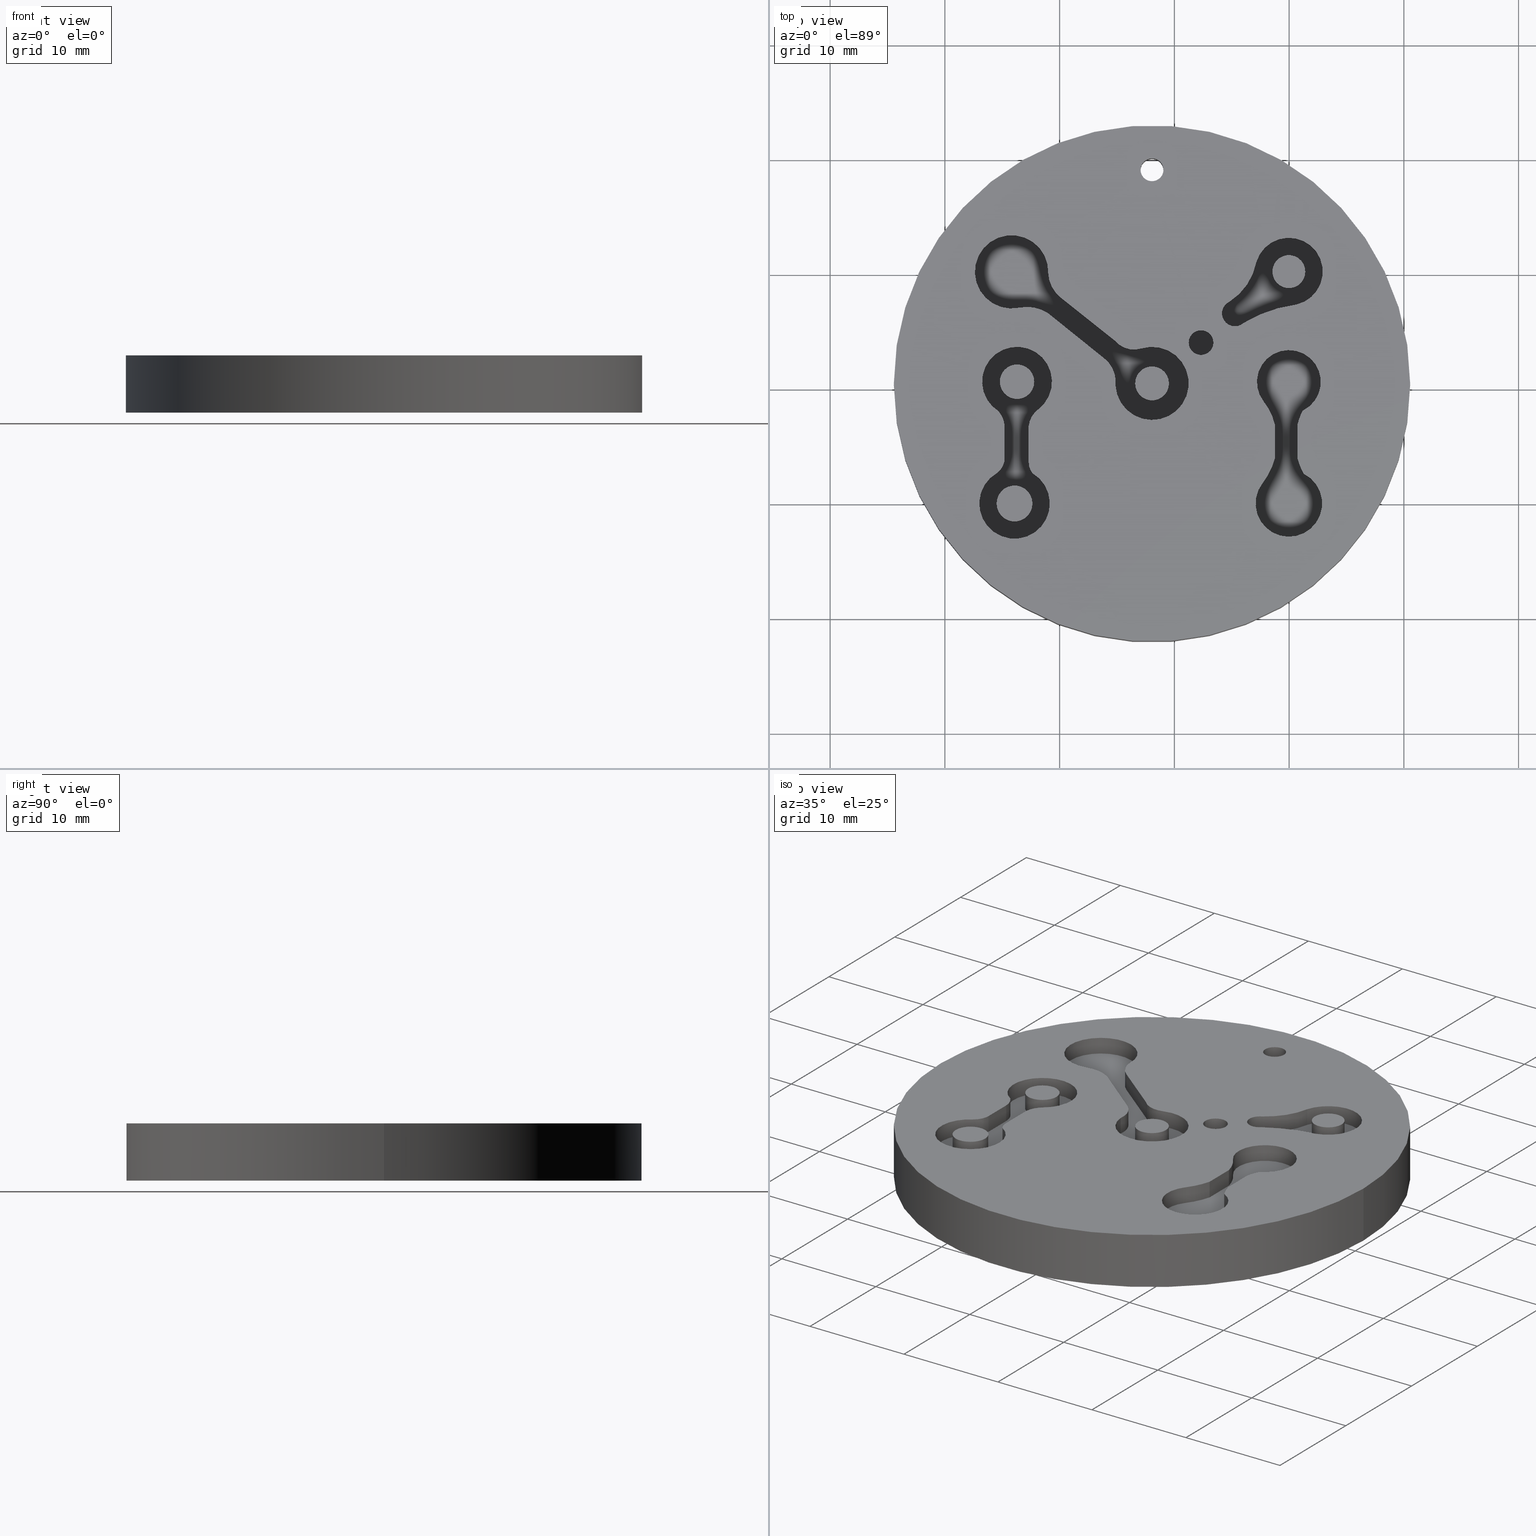
[diagram: canonical four-view strip — front | top / right | iso, engineering-drawing reading convention]
A machine part, canonical four-view strip (front | top / right | iso — engineering-drawing reading convention). The complete STEP part file that produces these views, byte-faithful:
ISO-10303-21;
HEADER;
/* Generated by software containing ST-Developer
 * from STEP Tools, Inc. (www.steptools.com) 
 */

FILE_DESCRIPTION(
/* description */ (''),
/* implementation_level */ '2;1');

FILE_NAME(
/* name */ 'Makera40mmKeychain.step',
/* time_stamp */ '2023-12-12T10:04:24-05:00',
/* author */ (''),
/* organization */ (''),
/* preprocessor_version */ 'ST-DEVELOPER v20',
/* originating_system */ 'Autodesk Translation Framework v12.14.0.127',

/* authorisation */ '');

FILE_SCHEMA (('AUTOMOTIVE_DESIGN { 1 0 10303 214 3 1 1 }'));
ENDSEC;

DATA;
#10=MECHANICAL_DESIGN_GEOMETRIC_PRESENTATION_REPRESENTATION('',(#13),#1358);
#11=SHAPE_REPRESENTATION_RELATIONSHIP('SRR','None',#1365,#12);
#12=ADVANCED_BREP_SHAPE_REPRESENTATION('',(#14),#1357);
#13=STYLED_ITEM('',(#1374),#14);
#14=MANIFOLD_SOLID_BREP('Body1',#758);
#15=FACE_BOUND('',#99,.T.);
#16=FACE_BOUND('',#110,.T.);
#17=FACE_BOUND('',#131,.T.);
#18=FACE_BOUND('',#132,.T.);
#19=FACE_BOUND('',#134,.T.);
#20=FACE_BOUND('',#135,.T.);
#21=FACE_BOUND('',#136,.T.);
#22=FACE_BOUND('',#137,.T.);
#23=FACE_BOUND('',#138,.T.);
#24=FACE_BOUND('',#139,.T.);
#25=FACE_BOUND('',#145,.T.);
#26=PLANE('',#781);
#27=PLANE('',#797);
#28=PLANE('',#804);
#29=PLANE('',#814);
#30=PLANE('',#821);
#31=PLANE('',#825);
#32=PLANE('',#835);
#33=PLANE('',#842);
#34=PLANE('',#852);
#35=PLANE('',#862);
#36=PLANE('',#869);
#37=PLANE('',#870);
#38=PLANE('',#871);
#39=PLANE('',#872);
#40=PLANE('',#873);
#41=PLANE('',#874);
#42=PLANE('',#875);
#43=FACE_OUTER_BOUND('',#89,.T.);
#44=FACE_OUTER_BOUND('',#90,.T.);
#45=FACE_OUTER_BOUND('',#91,.T.);
#46=FACE_OUTER_BOUND('',#92,.T.);
#47=FACE_OUTER_BOUND('',#93,.T.);
#48=FACE_OUTER_BOUND('',#94,.T.);
#49=FACE_OUTER_BOUND('',#95,.T.);
#50=FACE_OUTER_BOUND('',#96,.T.);
#51=FACE_OUTER_BOUND('',#97,.T.);
#52=FACE_OUTER_BOUND('',#98,.T.);
#53=FACE_OUTER_BOUND('',#100,.T.);
#54=FACE_OUTER_BOUND('',#101,.T.);
#55=FACE_OUTER_BOUND('',#102,.T.);
#56=FACE_OUTER_BOUND('',#103,.T.);
#57=FACE_OUTER_BOUND('',#104,.T.);
#58=FACE_OUTER_BOUND('',#105,.T.);
#59=FACE_OUTER_BOUND('',#106,.T.);
#60=FACE_OUTER_BOUND('',#107,.T.);
#61=FACE_OUTER_BOUND('',#108,.T.);
#62=FACE_OUTER_BOUND('',#109,.T.);
#63=FACE_OUTER_BOUND('',#111,.T.);
#64=FACE_OUTER_BOUND('',#112,.T.);
#65=FACE_OUTER_BOUND('',#113,.T.);
#66=FACE_OUTER_BOUND('',#114,.T.);
#67=FACE_OUTER_BOUND('',#115,.T.);
#68=FACE_OUTER_BOUND('',#116,.T.);
#69=FACE_OUTER_BOUND('',#117,.T.);
#70=FACE_OUTER_BOUND('',#118,.T.);
#71=FACE_OUTER_BOUND('',#119,.T.);
#72=FACE_OUTER_BOUND('',#120,.T.);
#73=FACE_OUTER_BOUND('',#121,.T.);
#74=FACE_OUTER_BOUND('',#122,.T.);
#75=FACE_OUTER_BOUND('',#123,.T.);
#76=FACE_OUTER_BOUND('',#124,.T.);
#77=FACE_OUTER_BOUND('',#125,.T.);
#78=FACE_OUTER_BOUND('',#126,.T.);
#79=FACE_OUTER_BOUND('',#127,.T.);
#80=FACE_OUTER_BOUND('',#128,.T.);
#81=FACE_OUTER_BOUND('',#129,.T.);
#82=FACE_OUTER_BOUND('',#130,.T.);
#83=FACE_OUTER_BOUND('',#133,.T.);
#84=FACE_OUTER_BOUND('',#140,.T.);
#85=FACE_OUTER_BOUND('',#141,.T.);
#86=FACE_OUTER_BOUND('',#142,.T.);
#87=FACE_OUTER_BOUND('',#143,.T.);
#88=FACE_OUTER_BOUND('',#144,.T.);
#89=EDGE_LOOP('',(#473,#474,#475,#476));
#90=EDGE_LOOP('',(#477,#478,#479,#480));
#91=EDGE_LOOP('',(#481,#482,#483,#484));
#92=EDGE_LOOP('',(#485));
#93=EDGE_LOOP('',(#486,#487,#488,#489));
#94=EDGE_LOOP('',(#490,#491,#492,#493));
#95=EDGE_LOOP('',(#494,#495,#496,#497));
#96=EDGE_LOOP('',(#498,#499,#500,#501));
#97=EDGE_LOOP('',(#502,#503,#504,#505));
#98=EDGE_LOOP('',(#506,#507,#508,#509));
#99=EDGE_LOOP('',(#510));
#100=EDGE_LOOP('',(#511,#512,#513,#514));
#101=EDGE_LOOP('',(#515,#516,#517,#518));
#102=EDGE_LOOP('',(#519,#520,#521,#522));
#103=EDGE_LOOP('',(#523,#524,#525,#526));
#104=EDGE_LOOP('',(#527,#528,#529,#530));
#105=EDGE_LOOP('',(#531,#532,#533,#534));
#106=EDGE_LOOP('',(#535,#536,#537,#538));
#107=EDGE_LOOP('',(#539,#540,#541,#542));
#108=EDGE_LOOP('',(#543,#544,#545,#546));
#109=EDGE_LOOP('',(#547,#548,#549,#550,#551,#552,#553,#554));
#110=EDGE_LOOP('',(#555));
#111=EDGE_LOOP('',(#556,#557,#558,#559));
#112=EDGE_LOOP('',(#560,#561,#562,#563));
#113=EDGE_LOOP('',(#564,#565,#566,#567));
#114=EDGE_LOOP('',(#568,#569,#570,#571));
#115=EDGE_LOOP('',(#572,#573,#574,#575));
#116=EDGE_LOOP('',(#576,#577,#578,#579));
#117=EDGE_LOOP('',(#580,#581,#582,#583));
#118=EDGE_LOOP('',(#584,#585,#586,#587));
#119=EDGE_LOOP('',(#588,#589,#590,#591,#592,#593,#594,#595));
#120=EDGE_LOOP('',(#596,#597,#598,#599));
#121=EDGE_LOOP('',(#600,#601,#602,#603));
#122=EDGE_LOOP('',(#604,#605,#606,#607));
#123=EDGE_LOOP('',(#608,#609,#610,#611));
#124=EDGE_LOOP('',(#612,#613,#614,#615));
#125=EDGE_LOOP('',(#616,#617,#618,#619));
#126=EDGE_LOOP('',(#620,#621,#622,#623));
#127=EDGE_LOOP('',(#624,#625,#626,#627));
#128=EDGE_LOOP('',(#628,#629,#630,#631));
#129=EDGE_LOOP('',(#632,#633,#634,#635));
#130=EDGE_LOOP('',(#636,#637,#638,#639,#640,#641,#642,#643));
#131=EDGE_LOOP('',(#644));
#132=EDGE_LOOP('',(#645));
#133=EDGE_LOOP('',(#646));
#134=EDGE_LOOP('',(#647));
#135=EDGE_LOOP('',(#648));
#136=EDGE_LOOP('',(#649,#650,#651,#652));
#137=EDGE_LOOP('',(#653,#654,#655,#656,#657,#658,#659,#660));
#138=EDGE_LOOP('',(#661,#662,#663,#664,#665,#666,#667,#668));
#139=EDGE_LOOP('',(#669,#670,#671,#672,#673,#674,#675,#676));
#140=EDGE_LOOP('',(#677));
#141=EDGE_LOOP('',(#678));
#142=EDGE_LOOP('',(#679));
#143=EDGE_LOOP('',(#680));
#144=EDGE_LOOP('',(#681));
#145=EDGE_LOOP('',(#682));
#146=LINE('',#1138,#193);
#147=LINE('',#1144,#194);
#148=LINE('',#1150,#195);
#149=LINE('',#1157,#196);
#150=LINE('',#1164,#197);
#151=LINE('',#1167,#198);
#152=LINE('',#1172,#199);
#153=LINE('',#1178,#200);
#154=LINE('',#1188,#201);
#155=LINE('',#1195,#202);
#156=LINE('',#1198,#203);
#157=LINE('',#1201,#204);
#158=LINE('',#1203,#205);
#159=LINE('',#1204,#206);
#160=LINE('',#1209,#207);
#161=LINE('',#1215,#208);
#162=LINE('',#1221,#209);
#163=LINE('',#1225,#210);
#164=LINE('',#1227,#211);
#165=LINE('',#1228,#212);
#166=LINE('',#1233,#213);
#167=LINE('',#1244,#214);
#168=LINE('',#1247,#215);
#169=LINE('',#1250,#216);
#170=LINE('',#1252,#217);
#171=LINE('',#1253,#218);
#172=LINE('',#1258,#219);
#173=LINE('',#1264,#220);
#174=LINE('',#1270,#221);
#175=LINE('',#1274,#222);
#176=LINE('',#1276,#223);
#177=LINE('',#1277,#224);
#178=LINE('',#1282,#225);
#179=LINE('',#1292,#226);
#180=LINE('',#1298,#227);
#181=LINE('',#1305,#228);
#182=LINE('',#1308,#229);
#183=LINE('',#1311,#230);
#184=LINE('',#1313,#231);
#185=LINE('',#1314,#232);
#186=LINE('',#1319,#233);
#187=LINE('',#1325,#234);
#188=LINE('',#1331,#235);
#189=LINE('',#1335,#236);
#190=LINE('',#1337,#237);
#191=LINE('',#1338,#238);
#192=LINE('',#1343,#239);
#193=VECTOR('',#882,1.);
#194=VECTOR('',#889,22.5);
#195=VECTOR('',#896,1.07672015491203);
#196=VECTOR('',#905,1.43526383437021);
#197=VECTOR('',#912,10.);
#198=VECTOR('',#915,10.);
#199=VECTOR('',#920,10.);
#200=VECTOR('',#927,10.);
#201=VECTOR('',#942,1.47556711621174);
#202=VECTOR('',#949,10.);
#203=VECTOR('',#952,10.);
#204=VECTOR('',#955,48.);
#205=VECTOR('',#956,10.);
#206=VECTOR('',#957,48.);
#207=VECTOR('',#962,10.);
#208=VECTOR('',#969,10.);
#209=VECTOR('',#976,10.);
#210=VECTOR('',#981,48.);
#211=VECTOR('',#982,10.);
#212=VECTOR('',#983,48.);
#213=VECTOR('',#988,10.);
#214=VECTOR('',#1003,10.);
#215=VECTOR('',#1006,10.);
#216=VECTOR('',#1009,48.);
#217=VECTOR('',#1010,10.);
#218=VECTOR('',#1011,48.);
#219=VECTOR('',#1016,10.);
#220=VECTOR('',#1023,10.);
#221=VECTOR('',#1030,10.);
#222=VECTOR('',#1035,48.);
#223=VECTOR('',#1036,10.);
#224=VECTOR('',#1037,48.);
#225=VECTOR('',#1042,10.);
#226=VECTOR('',#1057,1.50057594854906);
#227=VECTOR('',#1064,1.56346471094669);
#228=VECTOR('',#1071,10.);
#229=VECTOR('',#1074,10.);
#230=VECTOR('',#1077,48.);
#231=VECTOR('',#1078,10.);
#232=VECTOR('',#1079,48.);
#233=VECTOR('',#1084,10.);
#234=VECTOR('',#1091,10.);
#235=VECTOR('',#1098,10.);
#236=VECTOR('',#1103,48.);
#237=VECTOR('',#1104,10.);
#238=VECTOR('',#1105,48.);
#239=VECTOR('',#1110,10.);
#240=CIRCLE('',#773,1.);
#241=CIRCLE('',#774,1.);
#242=CIRCLE('',#776,22.5);
#243=CIRCLE('',#777,22.5);
#244=CIRCLE('',#779,1.07672015491203);
#245=CIRCLE('',#780,1.07672015491203);
#246=CIRCLE('',#783,1.43526383437021);
#247=CIRCLE('',#784,1.43526383437021);
#248=CIRCLE('',#786,11.7069667488273);
#249=CIRCLE('',#787,11.7069667488273);
#250=CIRCLE('',#789,2.94888572910964);
#251=CIRCLE('',#790,2.94888572910964);
#252=CIRCLE('',#792,5.27787053740473);
#253=CIRCLE('',#793,5.27787053740473);
#254=CIRCLE('',#795,1.12692869761494);
#255=CIRCLE('',#796,1.12692869761494);
#256=CIRCLE('',#799,1.47556711621174);
#257=CIRCLE('',#800,1.47556711621174);
#258=CIRCLE('',#802,3.31496552583742);
#259=CIRCLE('',#803,3.31496552583742);
#260=CIRCLE('',#806,2.6146646522035);
#261=CIRCLE('',#807,2.6146646522035);
#262=CIRCLE('',#809,3.18865941362887);
#263=CIRCLE('',#810,3.18865941362887);
#264=CIRCLE('',#812,2.18194427932069);
#265=CIRCLE('',#813,2.18194427932069);
#266=CIRCLE('',#816,2.87217014798354);
#267=CIRCLE('',#817,2.87217014798354);
#268=CIRCLE('',#819,3.19426913772284);
#269=CIRCLE('',#820,3.19426913772284);
#270=CIRCLE('',#823,5.03169616243129);
#271=CIRCLE('',#824,5.03169616243129);
#272=CIRCLE('',#827,5.85208532061931);
#273=CIRCLE('',#828,5.85208532061931);
#274=CIRCLE('',#830,2.8965525042398);
#275=CIRCLE('',#831,2.8965525042398);
#276=CIRCLE('',#833,5.85208532061931);
#277=CIRCLE('',#834,5.85208532061931);
#278=CIRCLE('',#837,5.03169616243127);
#279=CIRCLE('',#838,5.03169616243127);
#280=CIRCLE('',#840,2.77997540433799);
#281=CIRCLE('',#841,2.77997540433799);
#282=CIRCLE('',#844,1.50057594854906);
#283=CIRCLE('',#845,1.50057594854906);
#284=CIRCLE('',#847,1.56346471094669);
#285=CIRCLE('',#848,1.56346471094669);
#286=CIRCLE('',#850,2.13081616101524);
#287=CIRCLE('',#851,2.13081616101524);
#288=CIRCLE('',#854,1.62980474225353);
#289=CIRCLE('',#855,1.62980474225353);
#290=CIRCLE('',#857,3.06980999880907);
#291=CIRCLE('',#858,3.06980999880907);
#292=CIRCLE('',#860,1.46515175611475);
#293=CIRCLE('',#861,1.46515175611475);
#294=CIRCLE('',#864,2.06240244404573);
#295=CIRCLE('',#865,2.06240244404573);
#296=CIRCLE('',#867,3.04095983531042);
#297=CIRCLE('',#868,3.04095983531042);
#298=VERTEX_POINT('',#1135);
#299=VERTEX_POINT('',#1137);
#300=VERTEX_POINT('',#1141);
#301=VERTEX_POINT('',#1143);
#302=VERTEX_POINT('',#1147);
#303=VERTEX_POINT('',#1149);
#304=VERTEX_POINT('',#1154);
#305=VERTEX_POINT('',#1156);
#306=VERTEX_POINT('',#1160);
#307=VERTEX_POINT('',#1161);
#308=VERTEX_POINT('',#1163);
#309=VERTEX_POINT('',#1165);
#310=VERTEX_POINT('',#1169);
#311=VERTEX_POINT('',#1171);
#312=VERTEX_POINT('',#1175);
#313=VERTEX_POINT('',#1177);
#314=VERTEX_POINT('',#1185);
#315=VERTEX_POINT('',#1187);
#316=VERTEX_POINT('',#1191);
#317=VERTEX_POINT('',#1192);
#318=VERTEX_POINT('',#1194);
#319=VERTEX_POINT('',#1196);
#320=VERTEX_POINT('',#1200);
#321=VERTEX_POINT('',#1202);
#322=VERTEX_POINT('',#1206);
#323=VERTEX_POINT('',#1208);
#324=VERTEX_POINT('',#1212);
#325=VERTEX_POINT('',#1214);
#326=VERTEX_POINT('',#1218);
#327=VERTEX_POINT('',#1220);
#328=VERTEX_POINT('',#1224);
#329=VERTEX_POINT('',#1226);
#330=VERTEX_POINT('',#1230);
#331=VERTEX_POINT('',#1232);
#332=VERTEX_POINT('',#1240);
#333=VERTEX_POINT('',#1241);
#334=VERTEX_POINT('',#1243);
#335=VERTEX_POINT('',#1245);
#336=VERTEX_POINT('',#1249);
#337=VERTEX_POINT('',#1251);
#338=VERTEX_POINT('',#1255);
#339=VERTEX_POINT('',#1257);
#340=VERTEX_POINT('',#1261);
#341=VERTEX_POINT('',#1263);
#342=VERTEX_POINT('',#1267);
#343=VERTEX_POINT('',#1269);
#344=VERTEX_POINT('',#1273);
#345=VERTEX_POINT('',#1275);
#346=VERTEX_POINT('',#1279);
#347=VERTEX_POINT('',#1281);
#348=VERTEX_POINT('',#1289);
#349=VERTEX_POINT('',#1291);
#350=VERTEX_POINT('',#1295);
#351=VERTEX_POINT('',#1297);
#352=VERTEX_POINT('',#1301);
#353=VERTEX_POINT('',#1302);
#354=VERTEX_POINT('',#1304);
#355=VERTEX_POINT('',#1306);
#356=VERTEX_POINT('',#1310);
#357=VERTEX_POINT('',#1312);
#358=VERTEX_POINT('',#1316);
#359=VERTEX_POINT('',#1318);
#360=VERTEX_POINT('',#1322);
#361=VERTEX_POINT('',#1324);
#362=VERTEX_POINT('',#1328);
#363=VERTEX_POINT('',#1330);
#364=VERTEX_POINT('',#1334);
#365=VERTEX_POINT('',#1336);
#366=VERTEX_POINT('',#1340);
#367=VERTEX_POINT('',#1342);
#368=EDGE_CURVE('',#298,#298,#240,.T.);
#369=EDGE_CURVE('',#298,#299,#146,.T.);
#370=EDGE_CURVE('',#299,#299,#241,.T.);
#371=EDGE_CURVE('',#300,#300,#242,.T.);
#372=EDGE_CURVE('',#300,#301,#147,.T.);
#373=EDGE_CURVE('',#301,#301,#243,.T.);
#374=EDGE_CURVE('',#302,#302,#244,.T.);
#375=EDGE_CURVE('',#302,#303,#148,.T.);
#376=EDGE_CURVE('',#303,#303,#245,.T.);
#377=EDGE_CURVE('',#304,#304,#246,.T.);
#378=EDGE_CURVE('',#304,#305,#149,.T.);
#379=EDGE_CURVE('',#305,#305,#247,.T.);
#380=EDGE_CURVE('',#306,#307,#248,.T.);
#381=EDGE_CURVE('',#306,#308,#150,.T.);
#382=EDGE_CURVE('',#308,#309,#249,.T.);
#383=EDGE_CURVE('',#307,#309,#151,.T.);
#384=EDGE_CURVE('',#310,#306,#250,.T.);
#385=EDGE_CURVE('',#310,#311,#152,.T.);
#386=EDGE_CURVE('',#311,#308,#251,.T.);
#387=EDGE_CURVE('',#312,#310,#252,.T.);
#388=EDGE_CURVE('',#312,#313,#153,.T.);
#389=EDGE_CURVE('',#313,#311,#253,.T.);
#390=EDGE_CURVE('',#307,#312,#254,.T.);
#391=EDGE_CURVE('',#309,#313,#255,.T.);
#392=EDGE_CURVE('',#314,#314,#256,.T.);
#393=EDGE_CURVE('',#314,#315,#154,.T.);
#394=EDGE_CURVE('',#315,#315,#257,.T.);
#395=EDGE_CURVE('',#316,#317,#258,.T.);
#396=EDGE_CURVE('',#316,#318,#155,.T.);
#397=EDGE_CURVE('',#318,#319,#259,.T.);
#398=EDGE_CURVE('',#317,#319,#156,.T.);
#399=EDGE_CURVE('',#320,#316,#157,.T.);
#400=EDGE_CURVE('',#320,#321,#158,.T.);
#401=EDGE_CURVE('',#321,#318,#159,.T.);
#402=EDGE_CURVE('',#322,#320,#260,.T.);
#403=EDGE_CURVE('',#322,#323,#160,.T.);
#404=EDGE_CURVE('',#323,#321,#261,.T.);
#405=EDGE_CURVE('',#324,#322,#262,.T.);
#406=EDGE_CURVE('',#324,#325,#161,.T.);
#407=EDGE_CURVE('',#325,#323,#263,.T.);
#408=EDGE_CURVE('',#326,#324,#264,.T.);
#409=EDGE_CURVE('',#326,#327,#162,.T.);
#410=EDGE_CURVE('',#327,#325,#265,.T.);
#411=EDGE_CURVE('',#328,#326,#163,.T.);
#412=EDGE_CURVE('',#328,#329,#164,.T.);
#413=EDGE_CURVE('',#329,#327,#165,.T.);
#414=EDGE_CURVE('',#330,#328,#266,.T.);
#415=EDGE_CURVE('',#330,#331,#166,.T.);
#416=EDGE_CURVE('',#331,#329,#267,.T.);
#417=EDGE_CURVE('',#317,#330,#268,.T.);
#418=EDGE_CURVE('',#319,#331,#269,.T.);
#419=EDGE_CURVE('',#332,#333,#270,.T.);
#420=EDGE_CURVE('',#332,#334,#167,.T.);
#421=EDGE_CURVE('',#334,#335,#271,.T.);
#422=EDGE_CURVE('',#333,#335,#168,.T.);
#423=EDGE_CURVE('',#336,#332,#169,.T.);
#424=EDGE_CURVE('',#336,#337,#170,.T.);
#425=EDGE_CURVE('',#337,#334,#171,.T.);
#426=EDGE_CURVE('',#338,#336,#272,.T.);
#427=EDGE_CURVE('',#338,#339,#172,.T.);
#428=EDGE_CURVE('',#339,#337,#273,.T.);
#429=EDGE_CURVE('',#340,#338,#274,.T.);
#430=EDGE_CURVE('',#340,#341,#173,.T.);
#431=EDGE_CURVE('',#341,#339,#275,.T.);
#432=EDGE_CURVE('',#342,#340,#276,.T.);
#433=EDGE_CURVE('',#342,#343,#174,.T.);
#434=EDGE_CURVE('',#343,#341,#277,.T.);
#435=EDGE_CURVE('',#344,#342,#175,.T.);
#436=EDGE_CURVE('',#344,#345,#176,.T.);
#437=EDGE_CURVE('',#345,#343,#177,.T.);
#438=EDGE_CURVE('',#346,#344,#278,.T.);
#439=EDGE_CURVE('',#346,#347,#178,.T.);
#440=EDGE_CURVE('',#347,#345,#279,.T.);
#441=EDGE_CURVE('',#333,#346,#280,.T.);
#442=EDGE_CURVE('',#335,#347,#281,.T.);
#443=EDGE_CURVE('',#348,#348,#282,.T.);
#444=EDGE_CURVE('',#348,#349,#179,.T.);
#445=EDGE_CURVE('',#349,#349,#283,.T.);
#446=EDGE_CURVE('',#350,#350,#284,.T.);
#447=EDGE_CURVE('',#350,#351,#180,.T.);
#448=EDGE_CURVE('',#351,#351,#285,.T.);
#449=EDGE_CURVE('',#352,#353,#286,.T.);
#450=EDGE_CURVE('',#352,#354,#181,.T.);
#451=EDGE_CURVE('',#354,#355,#287,.T.);
#452=EDGE_CURVE('',#353,#355,#182,.T.);
#453=EDGE_CURVE('',#356,#352,#183,.T.);
#454=EDGE_CURVE('',#356,#357,#184,.T.);
#455=EDGE_CURVE('',#357,#354,#185,.T.);
#456=EDGE_CURVE('',#358,#356,#288,.T.);
#457=EDGE_CURVE('',#358,#359,#186,.T.);
#458=EDGE_CURVE('',#359,#357,#289,.T.);
#459=EDGE_CURVE('',#360,#358,#290,.T.);
#460=EDGE_CURVE('',#360,#361,#187,.T.);
#461=EDGE_CURVE('',#361,#359,#291,.T.);
#462=EDGE_CURVE('',#362,#360,#292,.T.);
#463=EDGE_CURVE('',#362,#363,#188,.T.);
#464=EDGE_CURVE('',#363,#361,#293,.T.);
#465=EDGE_CURVE('',#364,#362,#189,.T.);
#466=EDGE_CURVE('',#364,#365,#190,.T.);
#467=EDGE_CURVE('',#365,#363,#191,.T.);
#468=EDGE_CURVE('',#366,#364,#294,.T.);
#469=EDGE_CURVE('',#366,#367,#192,.T.);
#470=EDGE_CURVE('',#367,#365,#295,.T.);
#471=EDGE_CURVE('',#353,#366,#296,.T.);
#472=EDGE_CURVE('',#355,#367,#297,.T.);
#473=ORIENTED_EDGE('',*,*,#368,.F.);
#474=ORIENTED_EDGE('',*,*,#369,.T.);
#475=ORIENTED_EDGE('',*,*,#370,.F.);
#476=ORIENTED_EDGE('',*,*,#369,.F.);
#477=ORIENTED_EDGE('',*,*,#371,.F.);
#478=ORIENTED_EDGE('',*,*,#372,.T.);
#479=ORIENTED_EDGE('',*,*,#373,.F.);
#480=ORIENTED_EDGE('',*,*,#372,.F.);
#481=ORIENTED_EDGE('',*,*,#374,.T.);
#482=ORIENTED_EDGE('',*,*,#375,.T.);
#483=ORIENTED_EDGE('',*,*,#376,.F.);
#484=ORIENTED_EDGE('',*,*,#375,.F.);
#485=ORIENTED_EDGE('',*,*,#374,.F.);
#486=ORIENTED_EDGE('',*,*,#377,.T.);
#487=ORIENTED_EDGE('',*,*,#378,.T.);
#488=ORIENTED_EDGE('',*,*,#379,.F.);
#489=ORIENTED_EDGE('',*,*,#378,.F.);
#490=ORIENTED_EDGE('',*,*,#380,.F.);
#491=ORIENTED_EDGE('',*,*,#381,.T.);
#492=ORIENTED_EDGE('',*,*,#382,.T.);
#493=ORIENTED_EDGE('',*,*,#383,.F.);
#494=ORIENTED_EDGE('',*,*,#384,.F.);
#495=ORIENTED_EDGE('',*,*,#385,.T.);
#496=ORIENTED_EDGE('',*,*,#386,.T.);
#497=ORIENTED_EDGE('',*,*,#381,.F.);
#498=ORIENTED_EDGE('',*,*,#387,.F.);
#499=ORIENTED_EDGE('',*,*,#388,.T.);
#500=ORIENTED_EDGE('',*,*,#389,.T.);
#501=ORIENTED_EDGE('',*,*,#385,.F.);
#502=ORIENTED_EDGE('',*,*,#390,.F.);
#503=ORIENTED_EDGE('',*,*,#383,.T.);
#504=ORIENTED_EDGE('',*,*,#391,.T.);
#505=ORIENTED_EDGE('',*,*,#388,.F.);
#506=ORIENTED_EDGE('',*,*,#391,.F.);
#507=ORIENTED_EDGE('',*,*,#382,.F.);
#508=ORIENTED_EDGE('',*,*,#386,.F.);
#509=ORIENTED_EDGE('',*,*,#389,.F.);
#510=ORIENTED_EDGE('',*,*,#377,.F.);
#511=ORIENTED_EDGE('',*,*,#392,.T.);
#512=ORIENTED_EDGE('',*,*,#393,.T.);
#513=ORIENTED_EDGE('',*,*,#394,.F.);
#514=ORIENTED_EDGE('',*,*,#393,.F.);
#515=ORIENTED_EDGE('',*,*,#395,.F.);
#516=ORIENTED_EDGE('',*,*,#396,.T.);
#517=ORIENTED_EDGE('',*,*,#397,.T.);
#518=ORIENTED_EDGE('',*,*,#398,.F.);
#519=ORIENTED_EDGE('',*,*,#399,.F.);
#520=ORIENTED_EDGE('',*,*,#400,.T.);
#521=ORIENTED_EDGE('',*,*,#401,.T.);
#522=ORIENTED_EDGE('',*,*,#396,.F.);
#523=ORIENTED_EDGE('',*,*,#402,.F.);
#524=ORIENTED_EDGE('',*,*,#403,.T.);
#525=ORIENTED_EDGE('',*,*,#404,.T.);
#526=ORIENTED_EDGE('',*,*,#400,.F.);
#527=ORIENTED_EDGE('',*,*,#405,.F.);
#528=ORIENTED_EDGE('',*,*,#406,.T.);
#529=ORIENTED_EDGE('',*,*,#407,.T.);
#530=ORIENTED_EDGE('',*,*,#403,.F.);
#531=ORIENTED_EDGE('',*,*,#408,.F.);
#532=ORIENTED_EDGE('',*,*,#409,.T.);
#533=ORIENTED_EDGE('',*,*,#410,.T.);
#534=ORIENTED_EDGE('',*,*,#406,.F.);
#535=ORIENTED_EDGE('',*,*,#411,.F.);
#536=ORIENTED_EDGE('',*,*,#412,.T.);
#537=ORIENTED_EDGE('',*,*,#413,.T.);
#538=ORIENTED_EDGE('',*,*,#409,.F.);
#539=ORIENTED_EDGE('',*,*,#414,.F.);
#540=ORIENTED_EDGE('',*,*,#415,.T.);
#541=ORIENTED_EDGE('',*,*,#416,.T.);
#542=ORIENTED_EDGE('',*,*,#412,.F.);
#543=ORIENTED_EDGE('',*,*,#417,.F.);
#544=ORIENTED_EDGE('',*,*,#398,.T.);
#545=ORIENTED_EDGE('',*,*,#418,.T.);
#546=ORIENTED_EDGE('',*,*,#415,.F.);
#547=ORIENTED_EDGE('',*,*,#418,.F.);
#548=ORIENTED_EDGE('',*,*,#397,.F.);
#549=ORIENTED_EDGE('',*,*,#401,.F.);
#550=ORIENTED_EDGE('',*,*,#404,.F.);
#551=ORIENTED_EDGE('',*,*,#407,.F.);
#552=ORIENTED_EDGE('',*,*,#410,.F.);
#553=ORIENTED_EDGE('',*,*,#413,.F.);
#554=ORIENTED_EDGE('',*,*,#416,.F.);
#555=ORIENTED_EDGE('',*,*,#392,.F.);
#556=ORIENTED_EDGE('',*,*,#419,.F.);
#557=ORIENTED_EDGE('',*,*,#420,.T.);
#558=ORIENTED_EDGE('',*,*,#421,.T.);
#559=ORIENTED_EDGE('',*,*,#422,.F.);
#560=ORIENTED_EDGE('',*,*,#423,.F.);
#561=ORIENTED_EDGE('',*,*,#424,.T.);
#562=ORIENTED_EDGE('',*,*,#425,.T.);
#563=ORIENTED_EDGE('',*,*,#420,.F.);
#564=ORIENTED_EDGE('',*,*,#426,.F.);
#565=ORIENTED_EDGE('',*,*,#427,.T.);
#566=ORIENTED_EDGE('',*,*,#428,.T.);
#567=ORIENTED_EDGE('',*,*,#424,.F.);
#568=ORIENTED_EDGE('',*,*,#429,.F.);
#569=ORIENTED_EDGE('',*,*,#430,.T.);
#570=ORIENTED_EDGE('',*,*,#431,.T.);
#571=ORIENTED_EDGE('',*,*,#427,.F.);
#572=ORIENTED_EDGE('',*,*,#432,.F.);
#573=ORIENTED_EDGE('',*,*,#433,.T.);
#574=ORIENTED_EDGE('',*,*,#434,.T.);
#575=ORIENTED_EDGE('',*,*,#430,.F.);
#576=ORIENTED_EDGE('',*,*,#435,.F.);
#577=ORIENTED_EDGE('',*,*,#436,.T.);
#578=ORIENTED_EDGE('',*,*,#437,.T.);
#579=ORIENTED_EDGE('',*,*,#433,.F.);
#580=ORIENTED_EDGE('',*,*,#438,.F.);
#581=ORIENTED_EDGE('',*,*,#439,.T.);
#582=ORIENTED_EDGE('',*,*,#440,.T.);
#583=ORIENTED_EDGE('',*,*,#436,.F.);
#584=ORIENTED_EDGE('',*,*,#441,.F.);
#585=ORIENTED_EDGE('',*,*,#422,.T.);
#586=ORIENTED_EDGE('',*,*,#442,.T.);
#587=ORIENTED_EDGE('',*,*,#439,.F.);
#588=ORIENTED_EDGE('',*,*,#442,.F.);
#589=ORIENTED_EDGE('',*,*,#421,.F.);
#590=ORIENTED_EDGE('',*,*,#425,.F.);
#591=ORIENTED_EDGE('',*,*,#428,.F.);
#592=ORIENTED_EDGE('',*,*,#431,.F.);
#593=ORIENTED_EDGE('',*,*,#434,.F.);
#594=ORIENTED_EDGE('',*,*,#437,.F.);
#595=ORIENTED_EDGE('',*,*,#440,.F.);
#596=ORIENTED_EDGE('',*,*,#443,.T.);
#597=ORIENTED_EDGE('',*,*,#444,.T.);
#598=ORIENTED_EDGE('',*,*,#445,.F.);
#599=ORIENTED_EDGE('',*,*,#444,.F.);
#600=ORIENTED_EDGE('',*,*,#446,.T.);
#601=ORIENTED_EDGE('',*,*,#447,.T.);
#602=ORIENTED_EDGE('',*,*,#448,.F.);
#603=ORIENTED_EDGE('',*,*,#447,.F.);
#604=ORIENTED_EDGE('',*,*,#449,.F.);
#605=ORIENTED_EDGE('',*,*,#450,.T.);
#606=ORIENTED_EDGE('',*,*,#451,.T.);
#607=ORIENTED_EDGE('',*,*,#452,.F.);
#608=ORIENTED_EDGE('',*,*,#453,.F.);
#609=ORIENTED_EDGE('',*,*,#454,.T.);
#610=ORIENTED_EDGE('',*,*,#455,.T.);
#611=ORIENTED_EDGE('',*,*,#450,.F.);
#612=ORIENTED_EDGE('',*,*,#456,.F.);
#613=ORIENTED_EDGE('',*,*,#457,.T.);
#614=ORIENTED_EDGE('',*,*,#458,.T.);
#615=ORIENTED_EDGE('',*,*,#454,.F.);
#616=ORIENTED_EDGE('',*,*,#459,.F.);
#617=ORIENTED_EDGE('',*,*,#460,.T.);
#618=ORIENTED_EDGE('',*,*,#461,.T.);
#619=ORIENTED_EDGE('',*,*,#457,.F.);
#620=ORIENTED_EDGE('',*,*,#462,.F.);
#621=ORIENTED_EDGE('',*,*,#463,.T.);
#622=ORIENTED_EDGE('',*,*,#464,.T.);
#623=ORIENTED_EDGE('',*,*,#460,.F.);
#624=ORIENTED_EDGE('',*,*,#465,.F.);
#625=ORIENTED_EDGE('',*,*,#466,.T.);
#626=ORIENTED_EDGE('',*,*,#467,.T.);
#627=ORIENTED_EDGE('',*,*,#463,.F.);
#628=ORIENTED_EDGE('',*,*,#468,.F.);
#629=ORIENTED_EDGE('',*,*,#469,.T.);
#630=ORIENTED_EDGE('',*,*,#470,.T.);
#631=ORIENTED_EDGE('',*,*,#466,.F.);
#632=ORIENTED_EDGE('',*,*,#471,.F.);
#633=ORIENTED_EDGE('',*,*,#452,.T.);
#634=ORIENTED_EDGE('',*,*,#472,.T.);
#635=ORIENTED_EDGE('',*,*,#469,.F.);
#636=ORIENTED_EDGE('',*,*,#472,.F.);
#637=ORIENTED_EDGE('',*,*,#451,.F.);
#638=ORIENTED_EDGE('',*,*,#455,.F.);
#639=ORIENTED_EDGE('',*,*,#458,.F.);
#640=ORIENTED_EDGE('',*,*,#461,.F.);
#641=ORIENTED_EDGE('',*,*,#464,.F.);
#642=ORIENTED_EDGE('',*,*,#467,.F.);
#643=ORIENTED_EDGE('',*,*,#470,.F.);
#644=ORIENTED_EDGE('',*,*,#446,.F.);
#645=ORIENTED_EDGE('',*,*,#443,.F.);
#646=ORIENTED_EDGE('',*,*,#371,.T.);
#647=ORIENTED_EDGE('',*,*,#368,.T.);
#648=ORIENTED_EDGE('',*,*,#376,.T.);
#649=ORIENTED_EDGE('',*,*,#380,.T.);
#650=ORIENTED_EDGE('',*,*,#390,.T.);
#651=ORIENTED_EDGE('',*,*,#387,.T.);
#652=ORIENTED_EDGE('',*,*,#384,.T.);
#653=ORIENTED_EDGE('',*,*,#395,.T.);
#654=ORIENTED_EDGE('',*,*,#417,.T.);
#655=ORIENTED_EDGE('',*,*,#414,.T.);
#656=ORIENTED_EDGE('',*,*,#411,.T.);
#657=ORIENTED_EDGE('',*,*,#408,.T.);
#658=ORIENTED_EDGE('',*,*,#405,.T.);
#659=ORIENTED_EDGE('',*,*,#402,.T.);
#660=ORIENTED_EDGE('',*,*,#399,.T.);
#661=ORIENTED_EDGE('',*,*,#419,.T.);
#662=ORIENTED_EDGE('',*,*,#441,.T.);
#663=ORIENTED_EDGE('',*,*,#438,.T.);
#664=ORIENTED_EDGE('',*,*,#435,.T.);
#665=ORIENTED_EDGE('',*,*,#432,.T.);
#666=ORIENTED_EDGE('',*,*,#429,.T.);
#667=ORIENTED_EDGE('',*,*,#426,.T.);
#668=ORIENTED_EDGE('',*,*,#423,.T.);
#669=ORIENTED_EDGE('',*,*,#449,.T.);
#670=ORIENTED_EDGE('',*,*,#471,.T.);
#671=ORIENTED_EDGE('',*,*,#468,.T.);
#672=ORIENTED_EDGE('',*,*,#465,.T.);
#673=ORIENTED_EDGE('',*,*,#462,.T.);
#674=ORIENTED_EDGE('',*,*,#459,.T.);
#675=ORIENTED_EDGE('',*,*,#456,.T.);
#676=ORIENTED_EDGE('',*,*,#453,.T.);
#677=ORIENTED_EDGE('',*,*,#448,.T.);
#678=ORIENTED_EDGE('',*,*,#445,.T.);
#679=ORIENTED_EDGE('',*,*,#394,.T.);
#680=ORIENTED_EDGE('',*,*,#379,.T.);
#681=ORIENTED_EDGE('',*,*,#373,.T.);
#682=ORIENTED_EDGE('',*,*,#370,.T.);
#683=CYLINDRICAL_SURFACE('',#772,1.);
#684=CYLINDRICAL_SURFACE('',#775,22.5);
#685=CYLINDRICAL_SURFACE('',#778,1.07672015491203);
#686=CYLINDRICAL_SURFACE('',#782,1.43526383437021);
#687=CYLINDRICAL_SURFACE('',#785,11.7069667488273);
#688=CYLINDRICAL_SURFACE('',#788,2.94888572910964);
#689=CYLINDRICAL_SURFACE('',#791,5.27787053740473);
#690=CYLINDRICAL_SURFACE('',#794,1.12692869761494);
#691=CYLINDRICAL_SURFACE('',#798,1.47556711621174);
#692=CYLINDRICAL_SURFACE('',#801,3.31496552583742);
#693=CYLINDRICAL_SURFACE('',#805,2.6146646522035);
#694=CYLINDRICAL_SURFACE('',#808,3.18865941362887);
#695=CYLINDRICAL_SURFACE('',#811,2.18194427932069);
#696=CYLINDRICAL_SURFACE('',#815,2.87217014798354);
#697=CYLINDRICAL_SURFACE('',#818,3.19426913772284);
#698=CYLINDRICAL_SURFACE('',#822,5.03169616243129);
#699=CYLINDRICAL_SURFACE('',#826,5.85208532061931);
#700=CYLINDRICAL_SURFACE('',#829,2.8965525042398);
#701=CYLINDRICAL_SURFACE('',#832,5.85208532061931);
#702=CYLINDRICAL_SURFACE('',#836,5.03169616243127);
#703=CYLINDRICAL_SURFACE('',#839,2.77997540433799);
#704=CYLINDRICAL_SURFACE('',#843,1.50057594854906);
#705=CYLINDRICAL_SURFACE('',#846,1.56346471094669);
#706=CYLINDRICAL_SURFACE('',#849,2.13081616101524);
#707=CYLINDRICAL_SURFACE('',#853,1.62980474225353);
#708=CYLINDRICAL_SURFACE('',#856,3.06980999880907);
#709=CYLINDRICAL_SURFACE('',#859,1.46515175611475);
#710=CYLINDRICAL_SURFACE('',#863,2.06240244404573);
#711=CYLINDRICAL_SURFACE('',#866,3.04095983531042);
#712=ADVANCED_FACE('',(#43),#683,.F.);
#713=ADVANCED_FACE('',(#44),#684,.T.);
#714=ADVANCED_FACE('',(#45),#685,.F.);
#715=ADVANCED_FACE('',(#46),#26,.T.);
#716=ADVANCED_FACE('',(#47),#686,.T.);
#717=ADVANCED_FACE('',(#48),#687,.T.);
#718=ADVANCED_FACE('',(#49),#688,.F.);
#719=ADVANCED_FACE('',(#50),#689,.T.);
#720=ADVANCED_FACE('',(#51),#690,.F.);
#721=ADVANCED_FACE('',(#52,#15),#27,.T.);
#722=ADVANCED_FACE('',(#53),#691,.T.);
#723=ADVANCED_FACE('',(#54),#692,.T.);
#724=ADVANCED_FACE('',(#55),#28,.F.);
#725=ADVANCED_FACE('',(#56),#693,.T.);
#726=ADVANCED_FACE('',(#57),#694,.F.);
#727=ADVANCED_FACE('',(#58),#695,.T.);
#728=ADVANCED_FACE('',(#59),#29,.F.);
#729=ADVANCED_FACE('',(#60),#696,.T.);
#730=ADVANCED_FACE('',(#61),#697,.F.);
#731=ADVANCED_FACE('',(#62,#16),#30,.T.);
#732=ADVANCED_FACE('',(#63),#698,.T.);
#733=ADVANCED_FACE('',(#64),#31,.F.);
#734=ADVANCED_FACE('',(#65),#699,.T.);
#735=ADVANCED_FACE('',(#66),#700,.F.);
#736=ADVANCED_FACE('',(#67),#701,.T.);
#737=ADVANCED_FACE('',(#68),#32,.F.);
#738=ADVANCED_FACE('',(#69),#702,.T.);
#739=ADVANCED_FACE('',(#70),#703,.F.);
#740=ADVANCED_FACE('',(#71),#33,.T.);
#741=ADVANCED_FACE('',(#72),#704,.T.);
#742=ADVANCED_FACE('',(#73),#705,.T.);
#743=ADVANCED_FACE('',(#74),#706,.T.);
#744=ADVANCED_FACE('',(#75),#34,.F.);
#745=ADVANCED_FACE('',(#76),#707,.T.);
#746=ADVANCED_FACE('',(#77),#708,.F.);
#747=ADVANCED_FACE('',(#78),#709,.T.);
#748=ADVANCED_FACE('',(#79),#35,.F.);
#749=ADVANCED_FACE('',(#80),#710,.T.);
#750=ADVANCED_FACE('',(#81),#711,.F.);
#751=ADVANCED_FACE('',(#82,#17,#18),#36,.T.);
#752=ADVANCED_FACE('',(#83,#19,#20,#21,#22,#23,#24),#37,.T.);
#753=ADVANCED_FACE('',(#84),#38,.T.);
#754=ADVANCED_FACE('',(#85),#39,.T.);
#755=ADVANCED_FACE('',(#86),#40,.T.);
#756=ADVANCED_FACE('',(#87),#41,.T.);
#757=ADVANCED_FACE('',(#88,#25),#42,.F.);
#758=CLOSED_SHELL('',(#712,#713,#714,#715,#716,#717,#718,#719,#720,#721,
#722,#723,#724,#725,#726,#727,#728,#729,#730,#731,#732,#733,#734,#735,#736,
#737,#738,#739,#740,#741,#742,#743,#744,#745,#746,#747,#748,#749,#750,#751,
#752,#753,#754,#755,#756,#757));
#759=DERIVED_UNIT_ELEMENT(#761,1.);
#760=DERIVED_UNIT_ELEMENT(#1360,-3.);
#761=(
MASS_UNIT()
NAMED_UNIT(*)
SI_UNIT(.KILO.,.GRAM.)
);
#762=DERIVED_UNIT((#759,#760));
#763=MEASURE_REPRESENTATION_ITEM('density measure',
POSITIVE_RATIO_MEASURE(7850.),#762);
#764=PROPERTY_DEFINITION_REPRESENTATION(#769,#766);
#765=PROPERTY_DEFINITION_REPRESENTATION(#770,#767);
#766=REPRESENTATION('material name',(#768),#1357);
#767=REPRESENTATION('density',(#763),#1357);
#768=DESCRIPTIVE_REPRESENTATION_ITEM('Steel','Steel');
#769=PROPERTY_DEFINITION('material property','material name',#1367);
#770=PROPERTY_DEFINITION('material property','density of part',#1367);
#771=AXIS2_PLACEMENT_3D('',#1133,#876,#877);
#772=AXIS2_PLACEMENT_3D('',#1134,#878,#879);
#773=AXIS2_PLACEMENT_3D('',#1136,#880,#881);
#774=AXIS2_PLACEMENT_3D('',#1139,#883,#884);
#775=AXIS2_PLACEMENT_3D('',#1140,#885,#886);
#776=AXIS2_PLACEMENT_3D('',#1142,#887,#888);
#777=AXIS2_PLACEMENT_3D('',#1145,#890,#891);
#778=AXIS2_PLACEMENT_3D('',#1146,#892,#893);
#779=AXIS2_PLACEMENT_3D('',#1148,#894,#895);
#780=AXIS2_PLACEMENT_3D('',#1151,#897,#898);
#781=AXIS2_PLACEMENT_3D('',#1152,#899,#900);
#782=AXIS2_PLACEMENT_3D('',#1153,#901,#902);
#783=AXIS2_PLACEMENT_3D('',#1155,#903,#904);
#784=AXIS2_PLACEMENT_3D('',#1158,#906,#907);
#785=AXIS2_PLACEMENT_3D('',#1159,#908,#909);
#786=AXIS2_PLACEMENT_3D('',#1162,#910,#911);
#787=AXIS2_PLACEMENT_3D('',#1166,#913,#914);
#788=AXIS2_PLACEMENT_3D('',#1168,#916,#917);
#789=AXIS2_PLACEMENT_3D('',#1170,#918,#919);
#790=AXIS2_PLACEMENT_3D('',#1173,#921,#922);
#791=AXIS2_PLACEMENT_3D('',#1174,#923,#924);
#792=AXIS2_PLACEMENT_3D('',#1176,#925,#926);
#793=AXIS2_PLACEMENT_3D('',#1179,#928,#929);
#794=AXIS2_PLACEMENT_3D('',#1180,#930,#931);
#795=AXIS2_PLACEMENT_3D('',#1181,#932,#933);
#796=AXIS2_PLACEMENT_3D('',#1182,#934,#935);
#797=AXIS2_PLACEMENT_3D('',#1183,#936,#937);
#798=AXIS2_PLACEMENT_3D('',#1184,#938,#939);
#799=AXIS2_PLACEMENT_3D('',#1186,#940,#941);
#800=AXIS2_PLACEMENT_3D('',#1189,#943,#944);
#801=AXIS2_PLACEMENT_3D('',#1190,#945,#946);
#802=AXIS2_PLACEMENT_3D('',#1193,#947,#948);
#803=AXIS2_PLACEMENT_3D('',#1197,#950,#951);
#804=AXIS2_PLACEMENT_3D('',#1199,#953,#954);
#805=AXIS2_PLACEMENT_3D('',#1205,#958,#959);
#806=AXIS2_PLACEMENT_3D('',#1207,#960,#961);
#807=AXIS2_PLACEMENT_3D('',#1210,#963,#964);
#808=AXIS2_PLACEMENT_3D('',#1211,#965,#966);
#809=AXIS2_PLACEMENT_3D('',#1213,#967,#968);
#810=AXIS2_PLACEMENT_3D('',#1216,#970,#971);
#811=AXIS2_PLACEMENT_3D('',#1217,#972,#973);
#812=AXIS2_PLACEMENT_3D('',#1219,#974,#975);
#813=AXIS2_PLACEMENT_3D('',#1222,#977,#978);
#814=AXIS2_PLACEMENT_3D('',#1223,#979,#980);
#815=AXIS2_PLACEMENT_3D('',#1229,#984,#985);
#816=AXIS2_PLACEMENT_3D('',#1231,#986,#987);
#817=AXIS2_PLACEMENT_3D('',#1234,#989,#990);
#818=AXIS2_PLACEMENT_3D('',#1235,#991,#992);
#819=AXIS2_PLACEMENT_3D('',#1236,#993,#994);
#820=AXIS2_PLACEMENT_3D('',#1237,#995,#996);
#821=AXIS2_PLACEMENT_3D('',#1238,#997,#998);
#822=AXIS2_PLACEMENT_3D('',#1239,#999,#1000);
#823=AXIS2_PLACEMENT_3D('',#1242,#1001,#1002);
#824=AXIS2_PLACEMENT_3D('',#1246,#1004,#1005);
#825=AXIS2_PLACEMENT_3D('',#1248,#1007,#1008);
#826=AXIS2_PLACEMENT_3D('',#1254,#1012,#1013);
#827=AXIS2_PLACEMENT_3D('',#1256,#1014,#1015);
#828=AXIS2_PLACEMENT_3D('',#1259,#1017,#1018);
#829=AXIS2_PLACEMENT_3D('',#1260,#1019,#1020);
#830=AXIS2_PLACEMENT_3D('',#1262,#1021,#1022);
#831=AXIS2_PLACEMENT_3D('',#1265,#1024,#1025);
#832=AXIS2_PLACEMENT_3D('',#1266,#1026,#1027);
#833=AXIS2_PLACEMENT_3D('',#1268,#1028,#1029);
#834=AXIS2_PLACEMENT_3D('',#1271,#1031,#1032);
#835=AXIS2_PLACEMENT_3D('',#1272,#1033,#1034);
#836=AXIS2_PLACEMENT_3D('',#1278,#1038,#1039);
#837=AXIS2_PLACEMENT_3D('',#1280,#1040,#1041);
#838=AXIS2_PLACEMENT_3D('',#1283,#1043,#1044);
#839=AXIS2_PLACEMENT_3D('',#1284,#1045,#1046);
#840=AXIS2_PLACEMENT_3D('',#1285,#1047,#1048);
#841=AXIS2_PLACEMENT_3D('',#1286,#1049,#1050);
#842=AXIS2_PLACEMENT_3D('',#1287,#1051,#1052);
#843=AXIS2_PLACEMENT_3D('',#1288,#1053,#1054);
#844=AXIS2_PLACEMENT_3D('',#1290,#1055,#1056);
#845=AXIS2_PLACEMENT_3D('',#1293,#1058,#1059);
#846=AXIS2_PLACEMENT_3D('',#1294,#1060,#1061);
#847=AXIS2_PLACEMENT_3D('',#1296,#1062,#1063);
#848=AXIS2_PLACEMENT_3D('',#1299,#1065,#1066);
#849=AXIS2_PLACEMENT_3D('',#1300,#1067,#1068);
#850=AXIS2_PLACEMENT_3D('',#1303,#1069,#1070);
#851=AXIS2_PLACEMENT_3D('',#1307,#1072,#1073);
#852=AXIS2_PLACEMENT_3D('',#1309,#1075,#1076);
#853=AXIS2_PLACEMENT_3D('',#1315,#1080,#1081);
#854=AXIS2_PLACEMENT_3D('',#1317,#1082,#1083);
#855=AXIS2_PLACEMENT_3D('',#1320,#1085,#1086);
#856=AXIS2_PLACEMENT_3D('',#1321,#1087,#1088);
#857=AXIS2_PLACEMENT_3D('',#1323,#1089,#1090);
#858=AXIS2_PLACEMENT_3D('',#1326,#1092,#1093);
#859=AXIS2_PLACEMENT_3D('',#1327,#1094,#1095);
#860=AXIS2_PLACEMENT_3D('',#1329,#1096,#1097);
#861=AXIS2_PLACEMENT_3D('',#1332,#1099,#1100);
#862=AXIS2_PLACEMENT_3D('',#1333,#1101,#1102);
#863=AXIS2_PLACEMENT_3D('',#1339,#1106,#1107);
#864=AXIS2_PLACEMENT_3D('',#1341,#1108,#1109);
#865=AXIS2_PLACEMENT_3D('',#1344,#1111,#1112);
#866=AXIS2_PLACEMENT_3D('',#1345,#1113,#1114);
#867=AXIS2_PLACEMENT_3D('',#1346,#1115,#1116);
#868=AXIS2_PLACEMENT_3D('',#1347,#1117,#1118);
#869=AXIS2_PLACEMENT_3D('',#1348,#1119,#1120);
#870=AXIS2_PLACEMENT_3D('',#1349,#1121,#1122);
#871=AXIS2_PLACEMENT_3D('',#1350,#1123,#1124);
#872=AXIS2_PLACEMENT_3D('',#1351,#1125,#1126);
#873=AXIS2_PLACEMENT_3D('',#1352,#1127,#1128);
#874=AXIS2_PLACEMENT_3D('',#1353,#1129,#1130);
#875=AXIS2_PLACEMENT_3D('',#1354,#1131,#1132);
#876=DIRECTION('axis',(0.,0.,1.));
#877=DIRECTION('refdir',(1.,0.,0.));
#878=DIRECTION('center_axis',(0.,0.,-1.));
#879=DIRECTION('ref_axis',(-1.,0.,0.));
#880=DIRECTION('center_axis',(0.,0.,-1.));
#881=DIRECTION('ref_axis',(-1.,0.,0.));
#882=DIRECTION('',(0.,0.,-1.));
#883=DIRECTION('center_axis',(0.,0.,1.));
#884=DIRECTION('ref_axis',(-1.,0.,0.));
#885=DIRECTION('center_axis',(0.,0.,-1.));
#886=DIRECTION('ref_axis',(-1.,0.,0.));
#887=DIRECTION('center_axis',(0.,0.,1.));
#888=DIRECTION('ref_axis',(-1.,0.,0.));
#889=DIRECTION('',(0.,0.,-1.));
#890=DIRECTION('center_axis',(0.,0.,-1.));
#891=DIRECTION('ref_axis',(-1.,0.,0.));
#892=DIRECTION('center_axis',(0.,0.,1.));
#893=DIRECTION('ref_axis',(1.,0.,0.));
#894=DIRECTION('center_axis',(0.,0.,-1.));
#895=DIRECTION('ref_axis',(1.,0.,0.));
#896=DIRECTION('',(0.,0.,1.));
#897=DIRECTION('center_axis',(0.,0.,-1.));
#898=DIRECTION('ref_axis',(1.,0.,0.));
#899=DIRECTION('center_axis',(0.,0.,1.));
#900=DIRECTION('ref_axis',(1.,0.,0.));
#901=DIRECTION('center_axis',(0.,0.,1.));
#902=DIRECTION('ref_axis',(1.,0.,0.));
#903=DIRECTION('center_axis',(0.,0.,1.));
#904=DIRECTION('ref_axis',(1.,0.,0.));
#905=DIRECTION('',(0.,0.,1.));
#906=DIRECTION('center_axis',(0.,0.,1.));
#907=DIRECTION('ref_axis',(1.,0.,0.));
#908=DIRECTION('center_axis',(0.,0.,1.));
#909=DIRECTION('ref_axis',(-0.124510143279333,0.992218334954843,0.));
#910=DIRECTION('center_axis',(0.,0.,1.));
#911=DIRECTION('ref_axis',(-0.124510143279333,0.992218334954843,0.));
#912=DIRECTION('',(0.,0.,-1.));
#913=DIRECTION('center_axis',(0.,0.,1.));
#914=DIRECTION('ref_axis',(-0.124510143279333,0.992218334954843,0.));
#915=DIRECTION('',(0.,0.,-1.));
#916=DIRECTION('center_axis',(0.,0.,1.));
#917=DIRECTION('ref_axis',(1.,0.,0.));
#918=DIRECTION('center_axis',(0.,0.,-1.));
#919=DIRECTION('ref_axis',(1.,0.,0.));
#920=DIRECTION('',(0.,0.,-1.));
#921=DIRECTION('center_axis',(0.,0.,-1.));
#922=DIRECTION('ref_axis',(1.,0.,0.));
#923=DIRECTION('center_axis',(0.,0.,1.));
#924=DIRECTION('ref_axis',(0.539234003567845,-0.842155976880883,0.));
#925=DIRECTION('center_axis',(0.,0.,1.));
#926=DIRECTION('ref_axis',(0.539234003567845,-0.842155976880883,0.));
#927=DIRECTION('',(0.,0.,-1.));
#928=DIRECTION('center_axis',(0.,0.,1.));
#929=DIRECTION('ref_axis',(0.539234003567845,-0.842155976880883,0.));
#930=DIRECTION('center_axis',(0.,0.,1.));
#931=DIRECTION('ref_axis',(-0.832916570244102,-0.55339857879543,0.));
#932=DIRECTION('center_axis',(0.,0.,-1.));
#933=DIRECTION('ref_axis',(1.,0.,0.));
#934=DIRECTION('center_axis',(0.,0.,-1.));
#935=DIRECTION('ref_axis',(1.,0.,0.));
#936=DIRECTION('center_axis',(0.,0.,1.));
#937=DIRECTION('ref_axis',(1.,0.,0.));
#938=DIRECTION('center_axis',(0.,0.,1.));
#939=DIRECTION('ref_axis',(1.,0.,0.));
#940=DIRECTION('center_axis',(0.,0.,1.));
#941=DIRECTION('ref_axis',(1.,0.,0.));
#942=DIRECTION('',(0.,0.,1.));
#943=DIRECTION('center_axis',(0.,0.,1.));
#944=DIRECTION('ref_axis',(1.,0.,0.));
#945=DIRECTION('center_axis',(0.,0.,1.));
#946=DIRECTION('ref_axis',(0.555172612579208,0.831735156309974,0.));
#947=DIRECTION('center_axis',(0.,0.,1.));
#948=DIRECTION('ref_axis',(0.555172612579208,0.831735156309974,0.));
#949=DIRECTION('',(0.,0.,-1.));
#950=DIRECTION('center_axis',(0.,0.,1.));
#951=DIRECTION('ref_axis',(0.555172612579208,0.831735156309974,0.));
#952=DIRECTION('',(0.,0.,-1.));
#953=DIRECTION('center_axis',(-0.626758691727687,-0.779213412579506,0.));
#954=DIRECTION('ref_axis',(0.,0.,1.));
#955=DIRECTION('',(-0.779213412579506,0.626758691727687,0.));
#956=DIRECTION('',(0.,0.,-1.));
#957=DIRECTION('',(-0.779213412579506,0.626758691727687,0.));
#958=DIRECTION('center_axis',(0.,0.,1.));
#959=DIRECTION('ref_axis',(0.992768827455693,-0.120041889489665,0.));
#960=DIRECTION('center_axis',(0.,0.,1.));
#961=DIRECTION('ref_axis',(0.992768827455693,-0.120041889489665,0.));
#962=DIRECTION('',(0.,0.,-1.));
#963=DIRECTION('center_axis',(0.,0.,1.));
#964=DIRECTION('ref_axis',(0.992768827455693,-0.120041889489665,0.));
#965=DIRECTION('center_axis',(0.,0.,1.));
#966=DIRECTION('ref_axis',(1.,0.,0.));
#967=DIRECTION('center_axis',(0.,0.,-1.));
#968=DIRECTION('ref_axis',(1.,0.,0.));
#969=DIRECTION('',(0.,0.,-1.));
#970=DIRECTION('center_axis',(0.,0.,-1.));
#971=DIRECTION('ref_axis',(1.,0.,0.));
#972=DIRECTION('center_axis',(0.,0.,1.));
#973=DIRECTION('ref_axis',(-0.761212597785034,-0.64850241400735,0.));
#974=DIRECTION('center_axis',(0.,0.,1.));
#975=DIRECTION('ref_axis',(-0.761212597785034,-0.64850241400735,0.));
#976=DIRECTION('',(0.,0.,-1.));
#977=DIRECTION('center_axis',(0.,0.,1.));
#978=DIRECTION('ref_axis',(-0.761212597785034,-0.64850241400735,0.));
#979=DIRECTION('center_axis',(0.622523598877064,0.78260102788148,0.));
#980=DIRECTION('ref_axis',(0.,0.,-1.));
#981=DIRECTION('',(0.78260102788148,-0.622523598877064,0.));
#982=DIRECTION('',(0.,0.,-1.));
#983=DIRECTION('',(0.78260102788148,-0.622523598877064,0.));
#984=DIRECTION('center_axis',(0.,0.,1.));
#985=DIRECTION('ref_axis',(-0.998871869121451,-0.0474867252800114,0.));
#986=DIRECTION('center_axis',(0.,0.,1.));
#987=DIRECTION('ref_axis',(-0.998871869121451,-0.0474867252800114,0.));
#988=DIRECTION('',(0.,0.,-1.));
#989=DIRECTION('center_axis',(0.,0.,1.));
#990=DIRECTION('ref_axis',(-0.998871869121451,-0.0474867252800114,0.));
#991=DIRECTION('center_axis',(0.,0.,1.));
#992=DIRECTION('ref_axis',(-0.764300448014103,0.644860314459993,0.));
#993=DIRECTION('center_axis',(0.,0.,-1.));
#994=DIRECTION('ref_axis',(1.,0.,0.));
#995=DIRECTION('center_axis',(0.,0.,-1.));
#996=DIRECTION('ref_axis',(1.,0.,0.));
#997=DIRECTION('center_axis',(0.,0.,1.));
#998=DIRECTION('ref_axis',(1.,0.,0.));
#999=DIRECTION('center_axis',(0.,0.,1.));
#1000=DIRECTION('ref_axis',(0.983295412724528,0.182016843492297,0.));
#1001=DIRECTION('center_axis',(0.,0.,1.));
#1002=DIRECTION('ref_axis',(0.983295412724528,0.182016843492297,0.));
#1003=DIRECTION('',(0.,0.,-1.));
#1004=DIRECTION('center_axis',(0.,0.,1.));
#1005=DIRECTION('ref_axis',(0.983295412724528,0.182016843492297,0.));
#1006=DIRECTION('',(0.,0.,-1.));
#1007=DIRECTION('center_axis',(-1.,0.,0.));
#1008=DIRECTION('ref_axis',(0.,0.,1.));
#1009=DIRECTION('',(0.,1.,0.));
#1010=DIRECTION('',(0.,0.,-1.));
#1011=DIRECTION('',(0.,1.,0.));
#1012=DIRECTION('center_axis',(0.,0.,1.));
#1013=DIRECTION('ref_axis',(0.787176128399285,-0.616728256915728,0.));
#1014=DIRECTION('center_axis',(0.,0.,1.));
#1015=DIRECTION('ref_axis',(0.787176128399285,-0.616728256915728,0.));
#1016=DIRECTION('',(0.,0.,-1.));
#1017=DIRECTION('center_axis',(0.,0.,1.));
#1018=DIRECTION('ref_axis',(0.787176128399285,-0.616728256915728,0.));
#1019=DIRECTION('center_axis',(0.,0.,1.));
#1020=DIRECTION('ref_axis',(0.222429891434087,-0.974948687571105,0.));
#1021=DIRECTION('center_axis',(0.,0.,-1.));
#1022=DIRECTION('ref_axis',(1.,0.,0.));
#1023=DIRECTION('',(0.,0.,-1.));
#1024=DIRECTION('center_axis',(0.,0.,-1.));
#1025=DIRECTION('ref_axis',(1.,0.,0.));
#1026=DIRECTION('center_axis',(0.,0.,1.));
#1027=DIRECTION('ref_axis',(-0.975911992343988,-0.218164578241261,0.));
#1028=DIRECTION('center_axis',(0.,0.,1.));
#1029=DIRECTION('ref_axis',(-0.975911992343988,-0.218164578241261,0.));
#1030=DIRECTION('',(0.,0.,-1.));
#1031=DIRECTION('center_axis',(0.,0.,1.));
#1032=DIRECTION('ref_axis',(-0.975911992343988,-0.218164578241261,0.));
#1033=DIRECTION('center_axis',(1.,0.,0.));
#1034=DIRECTION('ref_axis',(0.,0.,-1.));
#1035=DIRECTION('',(0.,-1.,0.));
#1036=DIRECTION('',(0.,0.,-1.));
#1037=DIRECTION('',(0.,-1.,0.));
#1038=DIRECTION('center_axis',(0.,0.,1.));
#1039=DIRECTION('ref_axis',(-0.783858142208383,0.620939943065046,0.));
#1040=DIRECTION('center_axis',(0.,0.,1.));
#1041=DIRECTION('ref_axis',(-0.783858142208383,0.620939943065046,0.));
#1042=DIRECTION('',(0.,0.,-1.));
#1043=DIRECTION('center_axis',(0.,0.,1.));
#1044=DIRECTION('ref_axis',(-0.783858142208383,0.620939943065046,0.));
#1045=DIRECTION('center_axis',(0.,0.,1.));
#1046=DIRECTION('ref_axis',(0.224351555518858,0.974508275765921,0.));
#1047=DIRECTION('center_axis',(0.,0.,-1.));
#1048=DIRECTION('ref_axis',(1.,0.,0.));
#1049=DIRECTION('center_axis',(0.,0.,-1.));
#1050=DIRECTION('ref_axis',(1.,0.,0.));
#1051=DIRECTION('center_axis',(0.,0.,1.));
#1052=DIRECTION('ref_axis',(1.,0.,0.));
#1053=DIRECTION('center_axis',(0.,0.,1.));
#1054=DIRECTION('ref_axis',(1.,0.,0.));
#1055=DIRECTION('center_axis',(0.,0.,1.));
#1056=DIRECTION('ref_axis',(1.,0.,0.));
#1057=DIRECTION('',(0.,0.,1.));
#1058=DIRECTION('center_axis',(0.,0.,1.));
#1059=DIRECTION('ref_axis',(1.,0.,0.));
#1060=DIRECTION('center_axis',(0.,0.,1.));
#1061=DIRECTION('ref_axis',(1.,0.,0.));
#1062=DIRECTION('center_axis',(0.,0.,1.));
#1063=DIRECTION('ref_axis',(1.,0.,0.));
#1064=DIRECTION('',(0.,0.,1.));
#1065=DIRECTION('center_axis',(0.,0.,1.));
#1066=DIRECTION('ref_axis',(1.,0.,0.));
#1067=DIRECTION('center_axis',(0.,0.,1.));
#1068=DIRECTION('ref_axis',(1.,-1.00038109635168E-14,0.));
#1069=DIRECTION('center_axis',(0.,0.,1.));
#1070=DIRECTION('ref_axis',(1.,-1.00038109635168E-14,0.));
#1071=DIRECTION('',(0.,0.,-1.));
#1072=DIRECTION('center_axis',(0.,0.,1.));
#1073=DIRECTION('ref_axis',(1.,-1.00038109635168E-14,0.));
#1074=DIRECTION('',(0.,0.,-1.));
#1075=DIRECTION('center_axis',(-1.,0.,0.));
#1076=DIRECTION('ref_axis',(0.,0.,1.));
#1077=DIRECTION('',(0.,1.,0.));
#1078=DIRECTION('',(0.,0.,-1.));
#1079=DIRECTION('',(0.,1.,0.));
#1080=DIRECTION('center_axis',(0.,0.,1.));
#1081=DIRECTION('ref_axis',(0.590901468492534,-0.806743735354274,0.));
#1082=DIRECTION('center_axis',(0.,0.,1.));
#1083=DIRECTION('ref_axis',(0.590901468492534,-0.806743735354274,0.));
#1084=DIRECTION('',(0.,0.,-1.));
#1085=DIRECTION('center_axis',(0.,0.,1.));
#1086=DIRECTION('ref_axis',(0.590901468492534,-0.806743735354274,0.));
#1087=DIRECTION('center_axis',(0.,0.,1.));
#1088=DIRECTION('ref_axis',(-0.00599496063561727,-0.999982030062029,0.));
#1089=DIRECTION('center_axis',(0.,0.,-1.));
#1090=DIRECTION('ref_axis',(1.,0.,0.));
#1091=DIRECTION('',(0.,0.,-1.));
#1092=DIRECTION('center_axis',(0.,0.,-1.));
#1093=DIRECTION('ref_axis',(1.,0.,0.));
#1094=DIRECTION('center_axis',(0.,0.,1.));
#1095=DIRECTION('ref_axis',(-1.,-1.45488561057518E-14,0.));
#1096=DIRECTION('center_axis',(0.,0.,1.));
#1097=DIRECTION('ref_axis',(-1.,-1.45488561057518E-14,0.));
#1098=DIRECTION('',(0.,0.,-1.));
#1099=DIRECTION('center_axis',(0.,0.,1.));
#1100=DIRECTION('ref_axis',(-1.,-1.45488561057518E-14,0.));
#1101=DIRECTION('center_axis',(1.,0.,0.));
#1102=DIRECTION('ref_axis',(0.,0.,-1.));
#1103=DIRECTION('',(0.,-1.,0.));
#1104=DIRECTION('',(0.,0.,-1.));
#1105=DIRECTION('',(0.,-1.,0.));
#1106=DIRECTION('center_axis',(0.,0.,1.));
#1107=DIRECTION('ref_axis',(-0.600894769771138,0.799328140166285,0.));
#1108=DIRECTION('center_axis',(0.,0.,1.));
#1109=DIRECTION('ref_axis',(-0.600894769771138,0.799328140166285,0.));
#1110=DIRECTION('',(0.,0.,-1.));
#1111=DIRECTION('center_axis',(0.,0.,1.));
#1112=DIRECTION('ref_axis',(-0.600894769771138,0.799328140166285,0.));
#1113=DIRECTION('center_axis',(0.,0.,1.));
#1114=DIRECTION('ref_axis',(-0.0463122451467779,0.998927012323455,0.));
#1115=DIRECTION('center_axis',(0.,0.,-1.));
#1116=DIRECTION('ref_axis',(1.,0.,0.));
#1117=DIRECTION('center_axis',(0.,0.,-1.));
#1118=DIRECTION('ref_axis',(1.,0.,0.));
#1119=DIRECTION('center_axis',(0.,0.,1.));
#1120=DIRECTION('ref_axis',(1.,0.,0.));
#1121=DIRECTION('center_axis',(0.,0.,1.));
#1122=DIRECTION('ref_axis',(1.,0.,0.));
#1123=DIRECTION('center_axis',(0.,0.,1.));
#1124=DIRECTION('ref_axis',(1.,0.,0.));
#1125=DIRECTION('center_axis',(0.,0.,1.));
#1126=DIRECTION('ref_axis',(1.,0.,0.));
#1127=DIRECTION('center_axis',(0.,0.,1.));
#1128=DIRECTION('ref_axis',(1.,0.,0.));
#1129=DIRECTION('center_axis',(0.,0.,1.));
#1130=DIRECTION('ref_axis',(1.,0.,0.));
#1131=DIRECTION('center_axis',(0.,0.,1.));
#1132=DIRECTION('ref_axis',(1.,0.,0.));
#1133=CARTESIAN_POINT('',(0.,0.,0.));
#1134=CARTESIAN_POINT('Origin',(28.0503773553956,9.10774675819782,0.));
#1135=CARTESIAN_POINT('',(29.0503773553956,9.10774675819782,0.));
#1136=CARTESIAN_POINT('Origin',(28.0503773553956,9.10774675819782,0.));
#1137=CARTESIAN_POINT('',(29.0503773553956,9.10774675819782,-5.));
#1138=CARTESIAN_POINT('',(29.0503773553956,9.10774675819782,0.));
#1139=CARTESIAN_POINT('Origin',(28.0503773553956,9.10774675819782,-5.));
#1140=CARTESIAN_POINT('Origin',(28.0503773553956,-9.5249996215105,0.));
#1141=CARTESIAN_POINT('',(50.5503773553956,-9.5249996215105,0.));
#1142=CARTESIAN_POINT('Origin',(28.0503773553956,-9.5249996215105,0.));
#1143=CARTESIAN_POINT('',(50.5503773553956,-9.5249996215105,-5.));
#1144=CARTESIAN_POINT('',(50.5503773553956,-9.5249996215105,0.));
#1145=CARTESIAN_POINT('Origin',(28.0503773553956,-9.5249996215105,-5.));
#1146=CARTESIAN_POINT('Origin',(32.3207522948373,-5.96899998486041,0.));
#1147=CARTESIAN_POINT('',(31.2440321399253,-5.96899998486041,-1.5));
#1148=CARTESIAN_POINT('Origin',(32.3207522948373,-5.96899998486041,-1.5));
#1149=CARTESIAN_POINT('',(31.2440321399253,-5.96899998486041,0.));
#1150=CARTESIAN_POINT('',(31.2440321399253,-5.96899998486041,0.));
#1151=CARTESIAN_POINT('Origin',(32.3207522948373,-5.96899998486041,0.));
#1152=CARTESIAN_POINT('Origin',(32.3207522948373,-5.96899998486041,-1.5));
#1153=CARTESIAN_POINT('Origin',(39.9733504780566,0.220104051010259,0.));
#1154=CARTESIAN_POINT('',(38.5380866436863,0.220104051010259,-1.5));
#1155=CARTESIAN_POINT('Origin',(39.9733504780566,0.220104051010259,-1.5));
#1156=CARTESIAN_POINT('',(38.5380866436863,0.220104051010259,0.));
#1157=CARTESIAN_POINT('',(38.5380866436864,0.220104051010259,0.));
#1158=CARTESIAN_POINT('Origin',(39.9733504780566,0.220104051010259,0.));
#1159=CARTESIAN_POINT('Origin',(42.094796032127,-14.2689640169823,0.));
#1160=CARTESIAN_POINT('',(40.6371599248641,-2.65309696208917,0.));
#1161=CARTESIAN_POINT('',(36.0395454949488,-4.24963213356057,0.));
#1162=CARTESIAN_POINT('Origin',(42.094796032127,-14.2689640169823,0.));
#1163=CARTESIAN_POINT('',(40.6371599248641,-2.65309696208917,-1.5));
#1164=CARTESIAN_POINT('',(40.6371599248641,-2.65309696208917,0.));
#1165=CARTESIAN_POINT('',(36.0395454949488,-4.24963213356057,-1.5));
#1166=CARTESIAN_POINT('Origin',(42.094796032127,-14.2689640169823,-1.5));
#1167=CARTESIAN_POINT('',(36.0395454949488,-4.24963213356057,0.));
#1168=CARTESIAN_POINT('Origin',(39.9733504780566,0.220104051010259,0.));
#1169=CARTESIAN_POINT('',(37.1467516286958,1.06050037902391,0.));
#1170=CARTESIAN_POINT('Origin',(39.9733504780566,0.220104051010259,0.));
#1171=CARTESIAN_POINT('',(37.1467516286958,1.06050037902391,-1.5));
#1172=CARTESIAN_POINT('',(37.1467516286958,1.06050037902391,0.));
#1173=CARTESIAN_POINT('Origin',(39.9733504780566,0.220104051010259,-1.5));
#1174=CARTESIAN_POINT('Origin',(31.9621758159138,2.0484735826692,0.));
#1175=CARTESIAN_POINT('',(34.8081830761113,-2.39631663560971,0.));
#1176=CARTESIAN_POINT('Origin',(31.9621758159138,2.0484735826692,0.));
#1177=CARTESIAN_POINT('',(34.8081830761113,-2.39631663560971,-1.5));
#1178=CARTESIAN_POINT('',(34.8081830761113,-2.39631663560971,0.));
#1179=CARTESIAN_POINT('Origin',(31.9621758159138,2.0484735826692,-1.5));
#1180=CARTESIAN_POINT('Origin',(35.2743787223362,-3.42229417383804,0.));
#1181=CARTESIAN_POINT('Origin',(35.2743787223362,-3.42229417383804,0.));
#1182=CARTESIAN_POINT('Origin',(35.2743787223362,-3.42229417383804,-1.5));
#1183=CARTESIAN_POINT('Origin',(38.5348431159437,-0.690116545666539,-1.5));
#1184=CARTESIAN_POINT('Origin',(28.0503773553956,-9.5249996215105,0.));
#1185=CARTESIAN_POINT('',(26.5748102391839,-9.5249996215105,-1.5));
#1186=CARTESIAN_POINT('Origin',(28.0503773553956,-9.5249996215105,-1.5));
#1187=CARTESIAN_POINT('',(26.5748102391839,-9.5249996215105,0.));
#1188=CARTESIAN_POINT('',(26.5748102391839,-9.5249996215105,0.));
#1189=CARTESIAN_POINT('Origin',(28.0503773553956,-9.5249996215105,0.));
#1190=CARTESIAN_POINT('Origin',(17.1561370159729,-6.17304522823227,0.));
#1191=CARTESIAN_POINT('',(18.9965150875621,-3.41587185843771,0.));
#1192=CARTESIAN_POINT('',(16.4694430679608,-2.92998373340149,0.));
#1193=CARTESIAN_POINT('Origin',(17.1561370159729,-6.17304522823227,0.));
#1194=CARTESIAN_POINT('',(18.9965150875621,-3.41587185843771,-1.5));
#1195=CARTESIAN_POINT('',(18.9965150875621,-3.41587185843771,0.));
#1196=CARTESIAN_POINT('',(16.4694430679608,-2.92998373340149,-1.5));
#1197=CARTESIAN_POINT('Origin',(17.1561370159729,-6.17304522823227,-1.5));
#1198=CARTESIAN_POINT('',(16.4694430679608,-2.92998373340149,0.));
#1199=CARTESIAN_POINT('Origin',(23.9106814482049,-7.36857137490609,0.));
#1200=CARTESIAN_POINT('',(23.9106814482049,-7.36857137490609,0.));
#1201=CARTESIAN_POINT('',(25.6940152593898,-8.80299222594346,0.));
#1202=CARTESIAN_POINT('',(23.9106814482049,-7.36857137490609,-1.5));
#1203=CARTESIAN_POINT('',(23.9106814482049,-7.36857137490609,0.));
#1204=CARTESIAN_POINT('',(18.3031112779054,-2.8581339427867,-1.5));
#1205=CARTESIAN_POINT('Origin',(22.2719176514832,-9.40595314130058,0.));
#1206=CARTESIAN_POINT('',(24.8676752124411,-9.71982242653293,0.));
#1207=CARTESIAN_POINT('Origin',(22.2719176514832,-9.40595314130058,0.));
#1208=CARTESIAN_POINT('',(24.8676752124411,-9.71982242653293,-1.5));
#1209=CARTESIAN_POINT('',(24.8676752124411,-9.71982242653293,0.));
#1210=CARTESIAN_POINT('Origin',(22.2719176514832,-9.40595314130058,-1.5));
#1211=CARTESIAN_POINT('Origin',(28.0503773553956,-9.5249996215105,0.));
#1212=CARTESIAN_POINT('',(27.1137484796632,-6.4770043450594,0.));
#1213=CARTESIAN_POINT('Origin',(28.0503773553956,-9.5249996215105,0.));
#1214=CARTESIAN_POINT('',(27.1137484796632,-6.4770043450594,-1.5));
#1215=CARTESIAN_POINT('',(27.1137484796632,-6.4770043450594,0.));
#1216=CARTESIAN_POINT('Origin',(28.0503773553956,-9.5249996215105,-1.5));
#1217=CARTESIAN_POINT('Origin',(26.4728296465044,-4.39131407865771,0.));
#1218=CARTESIAN_POINT('',(24.8119061734205,-5.80631021102671,0.));
#1219=CARTESIAN_POINT('Origin',(26.4728296465044,-4.39131407865771,0.));
#1220=CARTESIAN_POINT('',(24.8119061734205,-5.80631021102671,-1.5));
#1221=CARTESIAN_POINT('',(24.8119061734205,-5.80631021102671,0.));
#1222=CARTESIAN_POINT('Origin',(26.4728296465044,-4.39131407865771,-1.5));
#1223=CARTESIAN_POINT('Origin',(20.0804594297657,-2.04265906591063,0.));
#1224=CARTESIAN_POINT('',(20.0804594297657,-2.04265906591063,0.));
#1225=CARTESIAN_POINT('',(24.3437566058992,-5.43391847730377,0.));
#1226=CARTESIAN_POINT('',(20.0804594297657,-2.04265906591063,-1.5));
#1227=CARTESIAN_POINT('',(20.0804594297657,-2.04265906591063,0.));
#1228=CARTESIAN_POINT('',(19.5993746732343,-1.65997797640127,-1.5));
#1229=CARTESIAN_POINT('Origin',(21.8684531268757,0.205104244151788,0.));
#1230=CARTESIAN_POINT('',(18.9995231627245,0.0687142893770432,0.));
#1231=CARTESIAN_POINT('Origin',(21.8684531268757,0.205104244151788,0.));
#1232=CARTESIAN_POINT('',(18.9995231627245,0.0687142893770432,-1.5));
#1233=CARTESIAN_POINT('',(18.9995231627245,0.0687142893770432,0.));
#1234=CARTESIAN_POINT('Origin',(21.8684531268757,0.205104244151788,-1.5));
#1235=CARTESIAN_POINT('Origin',(15.8077513344872,0.194999366402637,0.));
#1236=CARTESIAN_POINT('Origin',(15.8077513344872,0.194999366402637,0.));
#1237=CARTESIAN_POINT('Origin',(15.8077513344872,0.194999366402637,-1.5));
#1238=CARTESIAN_POINT('Origin',(21.9262594828944,-4.66219526550694,-1.5));
#1239=CARTESIAN_POINT('Origin',(33.8501081161868,-14.2508548911581,0.));
#1240=CARTESIAN_POINT('',(38.7541962248372,-13.1248504090982,0.));
#1241=CARTESIAN_POINT('',(37.7942441222272,-11.1264737625374,0.));
#1242=CARTESIAN_POINT('Origin',(33.8501081161868,-14.2508548911581,0.));
#1243=CARTESIAN_POINT('',(38.7541962248372,-13.1248504090982,-1.5));
#1244=CARTESIAN_POINT('',(38.7541962248372,-13.1248504090982,0.));
#1245=CARTESIAN_POINT('',(37.7942441222272,-11.1264737625374,-1.5));
#1246=CARTESIAN_POINT('Origin',(33.8501081161868,-14.2508548911581,-1.5));
#1247=CARTESIAN_POINT('',(37.7942441222272,-11.1264737625374,0.));
#1248=CARTESIAN_POINT('Origin',(38.7541962248372,-16.0562323128533,0.));
#1249=CARTESIAN_POINT('',(38.7541962248372,-16.0562323128533,0.));
#1250=CARTESIAN_POINT('',(38.7541962248372,-12.7906159671819,0.));
#1251=CARTESIAN_POINT('',(38.7541962248372,-16.0562323128533,-1.5));
#1252=CARTESIAN_POINT('',(38.7541962248372,-16.0562323128533,0.));
#1253=CARTESIAN_POINT('',(38.7541962248372,-17.3840088034107,-1.5));
#1254=CARTESIAN_POINT('Origin',(33.0866316263165,-14.5982837124553,0.));
#1255=CARTESIAN_POINT('',(37.6932534920639,-18.207430091563,0.));
#1256=CARTESIAN_POINT('Origin',(33.0866316263165,-14.5982837124553,0.));
#1257=CARTESIAN_POINT('',(37.6932534920639,-18.207430091563,-1.5));
#1258=CARTESIAN_POINT('',(37.6932534920639,-18.207430091563,0.));
#1259=CARTESIAN_POINT('Origin',(33.0866316263165,-14.5982837124553,-1.5));
#1260=CARTESIAN_POINT('Origin',(39.9733504780566,-19.9938158685677,0.));
#1261=CARTESIAN_POINT('',(41.2530484775428,-17.395279849974,0.));
#1262=CARTESIAN_POINT('Origin',(39.9733504780566,-19.9938158685677,0.));
#1263=CARTESIAN_POINT('',(41.2530484775428,-17.395279849974,-1.5));
#1264=CARTESIAN_POINT('',(41.2530484775428,-17.395279849974,0.));
#1265=CARTESIAN_POINT('Origin',(39.9733504780566,-19.9938158685677,-1.5));
#1266=CARTESIAN_POINT('Origin',(46.3934487738732,-14.5982837124553,0.));
#1267=CARTESIAN_POINT('',(40.7258841753524,-16.0562323128532,0.));
#1268=CARTESIAN_POINT('Origin',(46.3934487738732,-14.5982837124553,0.));
#1269=CARTESIAN_POINT('',(40.7258841753524,-16.0562323128532,-1.5));
#1270=CARTESIAN_POINT('',(40.7258841753524,-16.0562323128532,0.));
#1271=CARTESIAN_POINT('Origin',(46.3934487738732,-14.5982837124553,-1.5));
#1272=CARTESIAN_POINT('Origin',(40.7258841753524,-13.1248504090982,0.));
#1273=CARTESIAN_POINT('',(40.7258841753524,-13.1248504090982,0.));
#1274=CARTESIAN_POINT('',(40.7258841753524,-11.3249250153044,0.));
#1275=CARTESIAN_POINT('',(40.7258841753524,-13.1248504090982,-1.5));
#1276=CARTESIAN_POINT('',(40.7258841753524,-13.1248504090982,0.));
#1277=CARTESIAN_POINT('',(40.7258841753524,-11.898660702529,-1.5));
#1278=CARTESIAN_POINT('Origin',(45.6299722840029,-14.2508548911581,0.));
#1279=CARTESIAN_POINT('',(41.1782865229008,-11.9055489078318,0.));
#1280=CARTESIAN_POINT('Origin',(45.6299722840029,-14.2508548911581,0.));
#1281=CARTESIAN_POINT('',(41.1782865229008,-11.9055489078318,-1.5));
#1282=CARTESIAN_POINT('',(41.1782865229008,-11.9055489078318,0.));
#1283=CARTESIAN_POINT('Origin',(45.6299722840029,-14.2508548911581,-1.5));
#1284=CARTESIAN_POINT('Origin',(39.9733504780566,-9.40027599324556,0.));
#1285=CARTESIAN_POINT('Origin',(39.9733504780566,-9.40027599324556,0.));
#1286=CARTESIAN_POINT('Origin',(39.9733504780566,-9.40027599324556,-1.5));
#1287=CARTESIAN_POINT('Origin',(39.9733504780566,-14.7553344808575,-1.5));
#1288=CARTESIAN_POINT('Origin',(16.2837678630951,-9.37693076576849,0.));
#1289=CARTESIAN_POINT('',(14.783191914546,-9.37693076576849,-1.5));
#1290=CARTESIAN_POINT('Origin',(16.2837678630951,-9.37693076576849,-1.5));
#1291=CARTESIAN_POINT('',(14.783191914546,-9.37693076576849,0.));
#1292=CARTESIAN_POINT('',(14.783191914546,-9.37693076576849,0.));
#1293=CARTESIAN_POINT('Origin',(16.2837678630951,-9.37693076576849,0.));
#1294=CARTESIAN_POINT('Origin',(16.0647523553956,-19.9938158685677,0.));
#1295=CARTESIAN_POINT('',(14.5012876444489,-19.9938158685677,-1.5));
#1296=CARTESIAN_POINT('Origin',(16.0647523553956,-19.9938158685677,-1.5));
#1297=CARTESIAN_POINT('',(14.5012876444489,-19.9938158685677,0.));
#1298=CARTESIAN_POINT('',(14.5012876444489,-19.9938158685677,0.));
#1299=CARTESIAN_POINT('Origin',(16.0647523553956,-19.9938158685677,0.));
#1300=CARTESIAN_POINT('Origin',(13.0766883744798,-13.3591897071421,0.));
#1301=CARTESIAN_POINT('',(15.2075045354951,-13.3591897071421,0.));
#1302=CARTESIAN_POINT('',(14.6892125288688,-11.9662994158571,0.));
#1303=CARTESIAN_POINT('Origin',(13.0766883744798,-13.3591897071421,0.));
#1304=CARTESIAN_POINT('',(15.2075045354951,-13.3591897071421,-1.5));
#1305=CARTESIAN_POINT('',(15.2075045354951,-13.3591897071421,0.));
#1306=CARTESIAN_POINT('',(14.6892125288688,-11.9662994158571,-1.5));
#1307=CARTESIAN_POINT('Origin',(13.0766883744798,-13.3591897071421,-1.5));
#1308=CARTESIAN_POINT('',(14.6892125288688,-11.9662994158571,0.));
#1309=CARTESIAN_POINT('Origin',(15.2075045354951,-16.0141805740185,0.));
#1310=CARTESIAN_POINT('',(15.2075045354951,-16.0141805740185,0.));
#1311=CARTESIAN_POINT('',(15.2075045354951,-12.7695900977645,0.));
#1312=CARTESIAN_POINT('',(15.2075045354951,-16.0141805740185,-1.5));
#1313=CARTESIAN_POINT('',(15.2075045354951,-16.0141805740185,0.));
#1314=CARTESIAN_POINT('',(15.2075045354951,-17.4739473396038,-1.5));
#1315=CARTESIAN_POINT('Origin',(13.5776997932416,-16.0141805740185,0.));
#1316=CARTESIAN_POINT('',(14.5407538087953,-17.3290153396823,0.));
#1317=CARTESIAN_POINT('Origin',(13.5776997932416,-16.0141805740185,0.));
#1318=CARTESIAN_POINT('',(14.5407538087953,-17.3290153396823,-1.5));
#1319=CARTESIAN_POINT('',(14.5407538087953,-17.3290153396823,0.));
#1320=CARTESIAN_POINT('Origin',(13.5776997932416,-16.0141805740185,-1.5));
#1321=CARTESIAN_POINT('Origin',(16.0647523553956,-19.9938158685677,0.));
#1322=CARTESIAN_POINT('',(17.6205915327347,-17.3474791773954,0.));
#1323=CARTESIAN_POINT('Origin',(16.0647523553956,-19.9938158685677,0.));
#1324=CARTESIAN_POINT('',(17.6205915327347,-17.3474791773954,-1.5));
#1325=CARTESIAN_POINT('',(17.6205915327347,-17.3474791773954,0.));
#1326=CARTESIAN_POINT('Origin',(16.0647523553956,-19.9938158685677,-1.5));
#1327=CARTESIAN_POINT('Origin',(18.7681527792273,-16.4365604905772,0.));
#1328=CARTESIAN_POINT('',(17.3030010231126,-16.4365604905773,0.));
#1329=CARTESIAN_POINT('Origin',(18.7681527792273,-16.4365604905772,0.));
#1330=CARTESIAN_POINT('',(17.3030010231126,-16.4365604905773,-1.5));
#1331=CARTESIAN_POINT('',(17.3030010231126,-16.4365604905773,0.));
#1332=CARTESIAN_POINT('Origin',(18.7681527792273,-16.4365604905772,-1.5));
#1333=CARTESIAN_POINT('Origin',(17.3030010231126,-13.2074759433206,0.));
#1334=CARTESIAN_POINT('',(17.3030010231126,-13.2074759433206,0.));
#1335=CARTESIAN_POINT('',(17.3030010231126,-11.3662377824155,0.));
#1336=CARTESIAN_POINT('',(17.3030010231126,-13.2074759433206,-1.5));
#1337=CARTESIAN_POINT('',(17.3030010231126,-13.2074759433206,0.));
#1338=CARTESIAN_POINT('',(17.3030010231126,-12.221064020318,-1.5));
#1339=CARTESIAN_POINT('Origin',(19.3503515650075,-13.456191845121,0.));
#1340=CARTESIAN_POINT('',(18.1110647232172,-11.8076555352475,0.));
#1341=CARTESIAN_POINT('Origin',(19.3503515650075,-13.456191845121,0.));
#1342=CARTESIAN_POINT('',(18.1110647232172,-11.8076555352475,-1.5));
#1343=CARTESIAN_POINT('',(18.1110647232172,-11.8076555352475,0.));
#1344=CARTESIAN_POINT('Origin',(19.3503515650075,-13.456191845121,-1.5));
#1345=CARTESIAN_POINT('Origin',(16.2837678630951,-9.37693076576849,0.));
#1346=CARTESIAN_POINT('Origin',(16.2837678630951,-9.37693076576849,0.));
#1347=CARTESIAN_POINT('Origin',(16.2837678630951,-9.37693076576849,-1.5));
#1348=CARTESIAN_POINT('Origin',(16.159835027496,-14.6997983989174,-1.5));
#1349=CARTESIAN_POINT('Origin',(28.0503773553956,-9.5249996215105,0.));
#1350=CARTESIAN_POINT('Origin',(28.0503773553956,-9.5249996215105,0.));
#1351=CARTESIAN_POINT('Origin',(28.0503773553956,-9.5249996215105,0.));
#1352=CARTESIAN_POINT('Origin',(28.0503773553956,-9.5249996215105,0.));
#1353=CARTESIAN_POINT('Origin',(28.0503773553956,-9.5249996215105,0.));
#1354=CARTESIAN_POINT('Origin',(28.0503773553956,-9.5249996215105,-5.));
#1355=UNCERTAINTY_MEASURE_WITH_UNIT(LENGTH_MEASURE(0.01),#1359,
'DISTANCE_ACCURACY_VALUE',
'Maximum model space distance between geometric entities at asserted c
onnectivities');
#1356=UNCERTAINTY_MEASURE_WITH_UNIT(LENGTH_MEASURE(0.01),#1359,
'DISTANCE_ACCURACY_VALUE',
'Maximum model space distance between geometric entities at asserted c
onnectivities');
#1357=(
GEOMETRIC_REPRESENTATION_CONTEXT(3)
GLOBAL_UNCERTAINTY_ASSIGNED_CONTEXT((#1355))
GLOBAL_UNIT_ASSIGNED_CONTEXT((#1359,#1361,#1362))
REPRESENTATION_CONTEXT('','3D')
);
#1358=(
GEOMETRIC_REPRESENTATION_CONTEXT(3)
GLOBAL_UNCERTAINTY_ASSIGNED_CONTEXT((#1356))
GLOBAL_UNIT_ASSIGNED_CONTEXT((#1359,#1361,#1362))
REPRESENTATION_CONTEXT('','3D')
);
#1359=(
LENGTH_UNIT()
NAMED_UNIT(*)
SI_UNIT(.MILLI.,.METRE.)
);
#1360=(
LENGTH_UNIT()
NAMED_UNIT(*)
SI_UNIT($,.METRE.)
);
#1361=(
NAMED_UNIT(*)
PLANE_ANGLE_UNIT()
SI_UNIT($,.RADIAN.)
);
#1362=(
NAMED_UNIT(*)
SI_UNIT($,.STERADIAN.)
SOLID_ANGLE_UNIT()
);
#1363=SHAPE_DEFINITION_REPRESENTATION(#1364,#1365);
#1364=PRODUCT_DEFINITION_SHAPE('',$,#1367);
#1365=SHAPE_REPRESENTATION('',(#771),#1357);
#1366=PRODUCT_DEFINITION_CONTEXT('part definition',#1371,'design');
#1367=PRODUCT_DEFINITION('Keychaintest','Keychaintest v1',#1368,#1366);
#1368=PRODUCT_DEFINITION_FORMATION('',$,#1373);
#1369=PRODUCT_RELATED_PRODUCT_CATEGORY('Keychaintest v1',
'Keychaintest v1',(#1373));
#1370=APPLICATION_PROTOCOL_DEFINITION('international standard',
'automotive_design',2009,#1371);
#1371=APPLICATION_CONTEXT(
'Core Data for Automotive Mechanical Design Process');
#1372=PRODUCT_CONTEXT('part definition',#1371,'mechanical');
#1373=PRODUCT('Keychaintest','Keychaintest v1',$,(#1372));
#1374=PRESENTATION_STYLE_ASSIGNMENT((#1375));
#1375=SURFACE_STYLE_USAGE(.BOTH.,#1376);
#1376=SURFACE_SIDE_STYLE('',(#1377));
#1377=SURFACE_STYLE_FILL_AREA(#1378);
#1378=FILL_AREA_STYLE('Steel - Satin',(#1379));
#1379=FILL_AREA_STYLE_COLOUR('Steel - Satin',#1380);
#1380=COLOUR_RGB('Steel - Satin',0.627450980392157,0.627450980392157,0.627450980392157);
ENDSEC;
END-ISO-10303-21;
